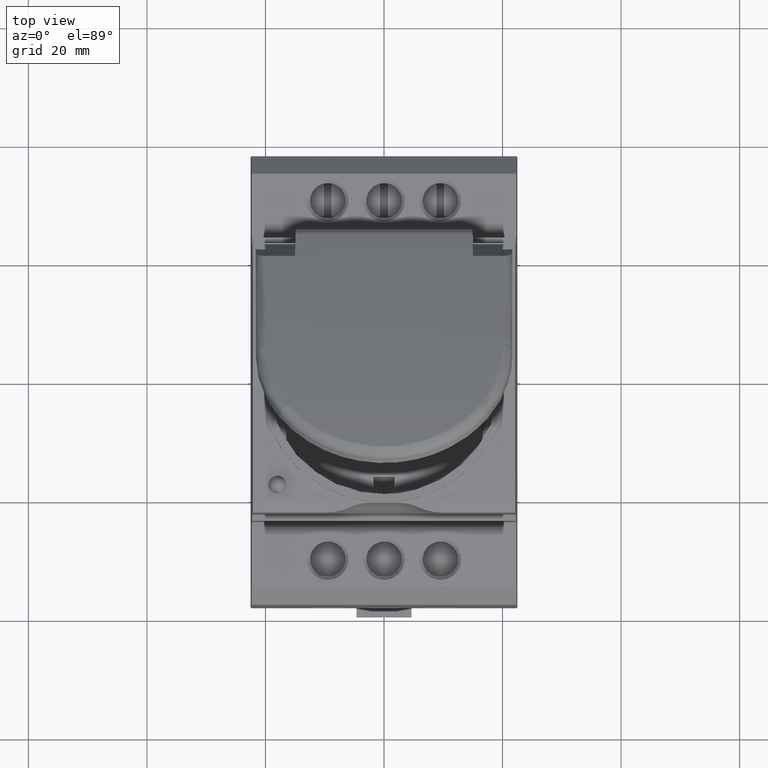
[diagram: clean part render]
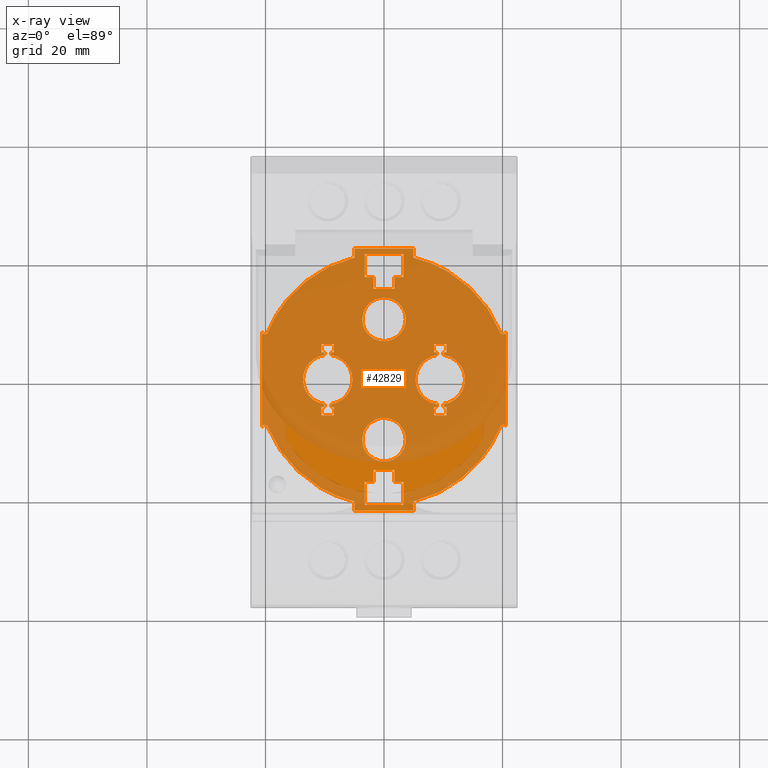
[diagram: x-ray — body ghosted, one internal face saturated and labeled with its STEP entity id]
A machine part, top view, then the same camera in x-ray: the body is ghosted and one INTERNAL B-rep face — a face not visible from any outside direction — is saturated and labeled: STEP entity #42829.
In plain terms, the highlighted planar face has unit normal (0, 0, 1).
Its self-contained STEP definition (entity closure, byte-faithful):
#26 = VERTEX_POINT ( 'NONE', #30658 ) ;
#77 = ORIENTED_EDGE ( 'NONE', *, *, #50155, .F. ) ;
#79 = ORIENTED_EDGE ( 'NONE', *, *, #50142, .F. ) ;
#80 = ORIENTED_EDGE ( 'NONE', *, *, #49865, .F. ) ;
#81 = ORIENTED_EDGE ( 'NONE', *, *, #50097, .F. ) ;
#96 = ORIENTED_EDGE ( 'NONE', *, *, #50195, .F. ) ;
#98 = ORIENTED_EDGE ( 'NONE', *, *, #50116, .F. ) ;
#100 = ORIENTED_EDGE ( 'NONE', *, *, #50147, .F. ) ;
#101 = ORIENTED_EDGE ( 'NONE', *, *, #50165, .F. ) ;
#107 = ORIENTED_EDGE ( 'NONE', *, *, #15575, .F. ) ;
#109 = ORIENTED_EDGE ( 'NONE', *, *, #15663, .F. ) ;
#110 = ORIENTED_EDGE ( 'NONE', *, *, #50167, .F. ) ;
#111 = ORIENTED_EDGE ( 'NONE', *, *, #50238, .F. ) ;
#113 = ORIENTED_EDGE ( 'NONE', *, *, #15636, .F. ) ;
#115 = ORIENTED_EDGE ( 'NONE', *, *, #49519, .F. ) ;
#120 = ORIENTED_EDGE ( 'NONE', *, *, #15599, .F. ) ;
#122 = ORIENTED_EDGE ( 'NONE', *, *, #49783, .F. ) ;
#125 = ORIENTED_EDGE ( 'NONE', *, *, #50239, .F. ) ;
#133 = ORIENTED_EDGE ( 'NONE', *, *, #50163, .F. ) ;
#140 = ORIENTED_EDGE ( 'NONE', *, *, #15732, .F. ) ;
#155 = ORIENTED_EDGE ( 'NONE', *, *, #49535, .F. ) ;
#175 = ORIENTED_EDGE ( 'NONE', *, *, #50090, .F. ) ;
#177 = ORIENTED_EDGE ( 'NONE', *, *, #50121, .F. ) ;
#179 = ORIENTED_EDGE ( 'NONE', *, *, #50075, .F. ) ;
#183 = ORIENTED_EDGE ( 'NONE', *, *, #50218, .F. ) ;
#192 = ORIENTED_EDGE ( 'NONE', *, *, #15632, .F. ) ;
#199 = ORIENTED_EDGE ( 'NONE', *, *, #50177, .F. ) ;
#273 = ORIENTED_EDGE ( 'NONE', *, *, #16151, .F. ) ;
#277 = ORIENTED_EDGE ( 'NONE', *, *, #16024, .F. ) ;
#293 = ORIENTED_EDGE ( 'NONE', *, *, #15581, .F. ) ;
#298 = ORIENTED_EDGE ( 'NONE', *, *, #16047, .F. ) ;
#299 = ORIENTED_EDGE ( 'NONE', *, *, #16016, .F. ) ;
#307 = ORIENTED_EDGE ( 'NONE', *, *, #16268, .F. ) ;
#308 = ORIENTED_EDGE ( 'NONE', *, *, #16249, .F. ) ;
#329 = ORIENTED_EDGE ( 'NONE', *, *, #17924, .F. ) ;
#336 = ORIENTED_EDGE ( 'NONE', *, *, #15621, .F. ) ;
#337 = ORIENTED_EDGE ( 'NONE', *, *, #50227, .T. ) ;
#338 = ORIENTED_EDGE ( 'NONE', *, *, #49755, .F. ) ;
#340 = ORIENTED_EDGE ( 'NONE', *, *, #49499, .F. ) ;
#346 = ORIENTED_EDGE ( 'NONE', *, *, #15604, .F. ) ;
#348 = ORIENTED_EDGE ( 'NONE', *, *, #49509, .F. ) ;
#351 = ORIENTED_EDGE ( 'NONE', *, *, #15584, .F. ) ;
#352 = ORIENTED_EDGE ( 'NONE', *, *, #49538, .F. ) ;
#354 = ORIENTED_EDGE ( 'NONE', *, *, #16240, .F. ) ;
#355 = ORIENTED_EDGE ( 'NONE', *, *, #15659, .F. ) ;
#356 = ORIENTED_EDGE ( 'NONE', *, *, #50233, .T. ) ;
#358 = ORIENTED_EDGE ( 'NONE', *, *, #15606, .F. ) ;
#360 = ORIENTED_EDGE ( 'NONE', *, *, #15655, .F. ) ;
#361 = ORIENTED_EDGE ( 'NONE', *, *, #15631, .F. ) ;
#362 = ORIENTED_EDGE ( 'NONE', *, *, #50107, .F. ) ;
#363 = ORIENTED_EDGE ( 'NONE', *, *, #50236, .F. ) ;
#364 = ORIENTED_EDGE ( 'NONE', *, *, #50138, .F. ) ;
#365 = ORIENTED_EDGE ( 'NONE', *, *, #15597, .F. ) ;
#367 = ORIENTED_EDGE ( 'NONE', *, *, #15706, .F. ) ;
#368 = ORIENTED_EDGE ( 'NONE', *, *, #16088, .F. ) ;
#370 = ORIENTED_EDGE ( 'NONE', *, *, #49517, .F. ) ;
#372 = ORIENTED_EDGE ( 'NONE', *, *, #15582, .F. ) ;
#374 = ORIENTED_EDGE ( 'NONE', *, *, #15583, .F. ) ;
#376 = ORIENTED_EDGE ( 'NONE', *, *, #49555, .F. ) ;
#377 = ORIENTED_EDGE ( 'NONE', *, *, #15694, .F. ) ;
#382 = ORIENTED_EDGE ( 'NONE', *, *, #49505, .F. ) ;
#383 = ORIENTED_EDGE ( 'NONE', *, *, #49617, .T. ) ;
#385 = ORIENTED_EDGE ( 'NONE', *, *, #16169, .F. ) ;
#387 = ORIENTED_EDGE ( 'NONE', *, *, #16242, .F. ) ;
#388 = ORIENTED_EDGE ( 'NONE', *, *, #16205, .F. ) ;
#389 = ORIENTED_EDGE ( 'NONE', *, *, #15624, .F. ) ;
#396 = ORIENTED_EDGE ( 'NONE', *, *, #49796, .F. ) ;
#398 = ORIENTED_EDGE ( 'NONE', *, *, #49764, .F. ) ;
#399 = ORIENTED_EDGE ( 'NONE', *, *, #16220, .F. ) ;
#407 = ORIENTED_EDGE ( 'NONE', *, *, #15585, .F. ) ;
#410 = ORIENTED_EDGE ( 'NONE', *, *, #15652, .F. ) ;
#428 = ORIENTED_EDGE ( 'NONE', *, *, #15589, .F. ) ;
#438 = ORIENTED_EDGE ( 'NONE', *, *, #49554, .F. ) ;
#448 = ORIENTED_EDGE ( 'NONE', *, *, #16244, .F. ) ;
#449 = ORIENTED_EDGE ( 'NONE', *, *, #49616, .T. ) ;
#459 = ORIENTED_EDGE ( 'NONE', *, *, #49863, .F. ) ;
#1050 = EDGE_LOOP ( 'NONE', ( #383, #360, #449, #407, #352, #346, #376, #358, #356, #336, #337, #351, #370, #365, #438, #372 ) ) ;
#1062 = EDGE_LOOP ( 'NONE', ( #387, #354, #399, #388, #368, #367, #385, #448 ) ) ;
#1071 = EDGE_LOOP ( 'NONE', ( #428, #459, #396, #410 ) ) ;
#1088 = EDGE_LOOP ( 'NONE', ( #100, #175, #183, #140, #110, #81, #133, #80, #113, #199, #179, #79, #192, #111, #101, #98, #109 ) ) ;
#1105 = EDGE_LOOP ( 'NONE', ( #273, #307, #299, #277, #329, #308, #293, #298 ) ) ;
#1126 = VECTOR ( 'NONE', #28197, 1000.000000000000000 ) ;
#1128 = VECTOR ( 'NONE', #28220, 1000.000000000000000 ) ;
#1134 = EDGE_LOOP ( 'NONE', ( #338, #361, #355, #398 ) ) ;
#1137 = EDGE_LOOP ( 'NONE', ( #382, #364, #340, #377, #348, #362, #363, #389, #374, #155, #177, #125, #120, #115, #77, #96, #122, #107 ) ) ;
#1138 = VECTOR ( 'NONE', #28302, 1000.000000000000000 ) ;
#1145 = VECTOR ( 'NONE', #25365, 1000.000000000000000 ) ;
#1194 = VECTOR ( 'NONE', #27976, 1000.000000000000000 ) ;
#1202 = VECTOR ( 'NONE', #25475, 1000.000000000000000 ) ;
#1259 = VECTOR ( 'NONE', #24784, 1000.000000000000000 ) ;
#1270 = VECTOR ( 'NONE', #24683, 1000.000000000000000 ) ;
#1276 = VECTOR ( 'NONE', #24524, 1000.000000000000000 ) ;
#1317 = VECTOR ( 'NONE', #24754, 1000.000000000000000 ) ;
#1630 = VECTOR ( 'NONE', #40272, 1000.000000000000000 ) ;
#1646 = VECTOR ( 'NONE', #40388, 1000.000000000000000 ) ;
#1711 = VECTOR ( 'NONE', #40327, 1000.000000000000000 ) ;
#1724 = VECTOR ( 'NONE', #9728, 1000.000000000000000 ) ;
#1733 = VECTOR ( 'NONE', #39729, 1000.000000000000000 ) ;
#1772 = VECTOR ( 'NONE', #8751, 1000.000000000000000 ) ;
#1808 = VECTOR ( 'NONE', #39378, 1000.000000000000000 ) ;
#1838 = VECTOR ( 'NONE', #8956, 1000.000000000000000 ) ;
#1855 = VECTOR ( 'NONE', #8977, 1000.000000000000000 ) ;
#1861 = VECTOR ( 'NONE', #8912, 1000.000000000000000 ) ;
#1864 = VECTOR ( 'NONE', #8905, 1000.000000000000000 ) ;
#1868 = VECTOR ( 'NONE', #8873, 1000.000000000000000 ) ;
#1870 = VECTOR ( 'NONE', #8903, 1000.000000000000000 ) ;
#1991 = LINE ( 'NONE', #2029, #29532 ) ;
#1995 = DIRECTION ( 'NONE',  ( 1.724398567562022200E-014, 1.000000000000000000, -3.009948895892056600E-016 ) ) ;
#2006 = DIRECTION ( 'NONE',  ( 0.0000000000000000000, 1.000000000000000000, 0.0000000000000000000 ) ) ;
#2025 = LINE ( 'NONE', #2034, #29462 ) ;
#2029 = CARTESIAN_POINT ( 'NONE',  ( 4.999999999999600300, -22.16477094198864600, -1.700000000000000600 ) ) ;
#2034 = CARTESIAN_POINT ( 'NONE',  ( -10.05672464063993300, -3.658030960244145200, -1.699999999999997500 ) ) ;
#3133 = DIRECTION ( 'NONE',  ( -0.0000000000000000000, -1.000000000000000000, -0.0000000000000000000 ) ) ;
#3140 = LINE ( 'NONE', #3163, #29512 ) ;
#3163 = CARTESIAN_POINT ( 'NONE',  ( -8.943275359360072200, 3.658030960244140300, -1.699999999999997500 ) ) ;
#3169 = DIRECTION ( 'NONE',  ( -6.671505279165231600E-015, -1.000000000000000000, 5.822134453662450100E-017 ) ) ;
#3170 = LINE ( 'NONE', #3174, #29476 ) ;
#3174 = CARTESIAN_POINT ( 'NONE',  ( -8.443275359360068700, 5.962906424912289600, -1.699999999999998400 ) ) ;
#3187 = CARTESIAN_POINT ( 'NONE',  ( -10.55672464063993300, 5.962906424912289600, -1.699999999999997500 ) ) ;
#3190 = CARTESIAN_POINT ( 'NONE',  ( -8.443275359360068700, -5.962906424912289600, -1.699999999999997500 ) ) ;
#3200 = LINE ( 'NONE', #3202, #29519 ) ;
#3202 = CARTESIAN_POINT ( 'NONE',  ( -5.000000000000370400, 22.16477094198846100, -1.700000000000000000 ) ) ;
#3213 = LINE ( 'NONE', #3187, #29482 ) ;
#3214 = DIRECTION ( 'NONE',  ( 6.671505279165361000E-015, 1.000000000000000000, 5.822134453662557400E-017 ) ) ;
#3218 = DIRECTION ( 'NONE',  ( -0.0000000000000000000, -1.000000000000000000, -0.0000000000000000000 ) ) ;
#3223 = DIRECTION ( 'NONE',  ( 1.724398567562022200E-014, -1.000000000000000000, 3.009948895892056600E-016 ) ) ;
#3231 = LINE ( 'NONE', #3190, #29455 ) ;
#7068 = VERTEX_POINT ( 'NONE', #30837 ) ;
#7084 = VERTEX_POINT ( 'NONE', #30824 ) ;
#7099 = VERTEX_POINT ( 'NONE', #30835 ) ;
#7137 = VERTEX_POINT ( 'NONE', #30938 ) ;
#7144 = VERTEX_POINT ( 'NONE', #30909 ) ;
#7163 = VERTEX_POINT ( 'NONE', #30948 ) ;
#7230 = VERTEX_POINT ( 'NONE', #30889 ) ;
#7248 = VERTEX_POINT ( 'NONE', #30944 ) ;
#7280 = VERTEX_POINT ( 'NONE', #30920 ) ;
#7295 = VERTEX_POINT ( 'NONE', #30908 ) ;
#7327 = VERTEX_POINT ( 'NONE', #30987 ) ;
#7370 = VERTEX_POINT ( 'NONE', #31010 ) ;
#8629 = B_SPLINE_CURVE_WITH_KNOTS ( 'NONE', 3,
 ( #55105, #55075, #55065, #55088, #55070, #55091, #55071, #55074, #55077, #55069 ),
 .UNSPECIFIED., .F., .F.,
 ( 4, 2, 2, 2, 4 ),
 ( 0.0000000000000000000, 0.2500000000000000000, 0.5000000000000000000, 0.7500000000000000000, 1.000000000000000000 ),
 .UNSPECIFIED. ) ;
#8630 = B_SPLINE_CURVE_WITH_KNOTS ( 'NONE', 3,
 ( #55066, #55102, #55078, #55113, #55100, #55101, #55064, #55081, #55067, #55104 ),
 .UNSPECIFIED., .F., .F.,
 ( 4, 2, 2, 2, 4 ),
 ( 0.0000000000000000000, 0.2500000000000000000, 0.5000000000000000000, 0.7500000000000000000, 1.000000000000000000 ),
 .UNSPECIFIED. ) ;
#8645 = B_SPLINE_CURVE_WITH_KNOTS ( 'NONE', 3,
 ( #53987, #53996, #53974, #53998, #54013, #53992, #53985, #53959, #54000, #54004 ),
 .UNSPECIFIED., .F., .F.,
 ( 4, 2, 2, 2, 4 ),
 ( 0.0000000000000000000, 0.2500000000000000000, 0.5000000000000000000, 0.7500000000000000000, 1.000000000000000000 ),
 .UNSPECIFIED. ) ;
#8647 = B_SPLINE_CURVE_WITH_KNOTS ( 'NONE', 3,
 ( #53855, #53945, #53951, #53950, #53946, #53942, #53923, #53919, #53922, #53911 ),
 .UNSPECIFIED., .F., .F.,
 ( 4, 2, 2, 2, 4 ),
 ( 0.0000000000000000000, 0.2500000000000001100, 0.5000000000000001100, 0.7500000000000001100, 1.000000000000000000 ),
 .UNSPECIFIED. ) ;
#8655 = B_SPLINE_CURVE_WITH_KNOTS ( 'NONE', 3,
 ( #54301, #54266, #54259, #54268, #54261, #54306, #54308, #54282, #54288, #54270 ),
 .UNSPECIFIED., .F., .F.,
 ( 4, 2, 2, 2, 4 ),
 ( 0.0000000000000000000, 0.2499999999999998900, 0.4999999999999997800, 0.7499999999999996700, 1.000000000000000000 ),
 .UNSPECIFIED. ) ;
#8664 = B_SPLINE_CURVE_WITH_KNOTS ( 'NONE', 3,
 ( #54609, #54615, #54602, #54604, #54610, #54612, #54616, #54617, #54618, #54620 ),
 .UNSPECIFIED., .F., .F.,
 ( 4, 2, 2, 2, 4 ),
 ( 0.0000000000000000000, 0.2500000000000002800, 0.5000000000000005600, 0.7500000000000002200, 1.000000000000000000 ),
 .UNSPECIFIED. ) ;
#8745 = LINE ( 'NONE', #8747, #1772 ) ;
#8747 = CARTESIAN_POINT ( 'NONE',  ( 97.86427190747768600, 17.30000000000001100, -1.700000000000000000 ) ) ;
#8751 = DIRECTION ( 'NONE',  ( -1.000000000000000000, -0.0000000000000000000, 0.0000000000000000000 ) ) ;
#8853 = CARTESIAN_POINT ( 'NONE',  ( -3.250000000000405000, 21.11477094198835000, -1.700000000000003500 ) ) ;
#8869 = LINE ( 'NONE', #8853, #1868 ) ;
#8873 = DIRECTION ( 'NONE',  ( -8.624619780480530000E-015, 1.000000000000000000, 0.0000000000000000000 ) ) ;
#8877 = LINE ( 'NONE', #8886, #1861 ) ;
#8879 = CARTESIAN_POINT ( 'NONE',  ( 3.250000000000405000, 21.11477094198835000, -1.700000000000000200 ) ) ;
#8886 = CARTESIAN_POINT ( 'NONE',  ( 19.99999999999964800, 21.14444229247747800, -1.700000000000000200 ) ) ;
#8891 = LINE ( 'NONE', #8879, #1870 ) ;
#8894 = LINE ( 'NONE', #8915, #1864 ) ;
#8903 = DIRECTION ( 'NONE',  ( -8.624619780480530000E-015, -1.000000000000000000, 0.0000000000000000000 ) ) ;
#8905 = DIRECTION ( 'NONE',  ( -1.000000000000000000, -0.0000000000000000000, 0.0000000000000000000 ) ) ;
#8912 = DIRECTION ( 'NONE',  ( 1.000000000000000000, 1.724792598959423400E-014, 1.505203697759834300E-016 ) ) ;
#8915 = CARTESIAN_POINT ( 'NONE',  ( 97.86427190747768600, 17.30000000000001100, -1.700000000000000000 ) ) ;
#8922 = LINE ( 'NONE', #8924, #1838 ) ;
#8924 = CARTESIAN_POINT ( 'NONE',  ( 1.749999999999835000, 67.22940901336600900, -1.700000000000000000 ) ) ;
#8939 = CARTESIAN_POINT ( 'NONE',  ( -3.249999999999685100, -21.11477094198845000, -1.700000000000000200 ) ) ;
#8956 = DIRECTION ( 'NONE',  ( 0.0000000000000000000, -1.000000000000000000, -0.0000000000000000000 ) ) ;
#8962 = LINE ( 'NONE', #8939, #1855 ) ;
#8977 = DIRECTION ( 'NONE',  ( -2.587385934144160000E-014, 1.000000000000000000, 0.0000000000000000000 ) ) ;
#9727 = LINE ( 'NONE', #9764, #1724 ) ;
#9728 = DIRECTION ( 'NONE',  ( 0.0000000000000000000, -1.000000000000000000, -0.0000000000000000000 ) ) ;
#9764 = CARTESIAN_POINT ( 'NONE',  ( 1.750000000000376100, 67.22940901336600900, -1.700000000000000000 ) ) ;
#9853 = B_SPLINE_CURVE_WITH_KNOTS ( 'NONE', 3,
 ( #51362, #51365, #51519, #51476, #51541, #51504, #51546, #51582, #51536, #51490, #51478, #51505, #51590, #51565 ),
 .UNSPECIFIED., .F., .F.,
 ( 4, 2, 2, 2, 2, 2, 4 ),
 ( 0.0000000000000000000, 0.1249999999999967500, 0.2499999999999935100, 0.4999999999999956700, 0.6249999999999967800, 0.7499999999999977800, 1.000000000000000000 ),
 .UNSPECIFIED. ) ;
#9859 = B_SPLINE_CURVE_WITH_KNOTS ( 'NONE', 3,
 ( #51372, #51548, #51523, #51533, #51544, #51572, #51567, #51580, #51482, #51556, #51509, #51558, #51535, #51474 ),
 .UNSPECIFIED., .F., .F.,
 ( 4, 2, 2, 2, 2, 2, 4 ),
 ( 0.0000000000000000000, 0.1250000000000003300, 0.2499999999999992200, 0.4999999999999970000, 0.6249999999999958900, 0.7499999999999947800, 1.000000000000000000 ),
 .UNSPECIFIED. ) ;
#10199 = CARTESIAN_POINT ( 'NONE',  ( -10.05672464063976400, 4.606181784272530800, -1.700000000017178200 ) ) ;
#10211 = CARTESIAN_POINT ( 'NONE',  ( 10.05672464063993300, 4.606181784272380700, -1.699999999999999100 ) ) ;
#10215 = CARTESIAN_POINT ( 'NONE',  ( -10.55672464063991500, -4.606181784272356700, -1.699999999999997500 ) ) ;
#10217 = CARTESIAN_POINT ( 'NONE',  ( 8.443275359360210800, 4.606181784272454400, -1.700000000011204800 ) ) ;
#10240 = CARTESIAN_POINT ( 'NONE',  ( -8.943275359360237400, -4.606181784272507700, -1.700000000017179800 ) ) ;
#10267 = CARTESIAN_POINT ( 'NONE',  ( -10.05672464063993300, -4.606181784272358500, -1.699999999999997700 ) ) ;
#10278 = CARTESIAN_POINT ( 'NONE',  ( 10.55672464063987800, -4.606181784272453500, -1.700000000011203900 ) ) ;
#10286 = CARTESIAN_POINT ( 'NONE',  ( 10.05672464063976400, -4.606181784272507700, -1.700000000017180000 ) ) ;
#10287 = CARTESIAN_POINT ( 'NONE',  ( -8.443275359360107800, -4.606181784272455300, -1.700000000011203000 ) ) ;
#10289 = CARTESIAN_POINT ( 'NONE',  ( 8.943275359360237400, 4.606181784272515700, -1.700000000017181500 ) ) ;
#10290 = CARTESIAN_POINT ( 'NONE',  ( 8.443275359360054500, -4.606181784272356700, -1.699999999999997500 ) ) ;
#10291 = CARTESIAN_POINT ( 'NONE',  ( 8.943275359360070500, -4.606181784272358500, -1.699999999999997700 ) ) ;
#10295 = CARTESIAN_POINT ( 'NONE',  ( 1.968847927323702200E-013, -13.82032638962220600, -1.700000000016807400 ) ) ;
#10311 = CARTESIAN_POINT ( 'NONE',  ( 3.670326389620257600, 10.15000000000002200, -1.700000000014006300 ) ) ;
#10335 = CARTESIAN_POINT ( 'NONE',  ( -8.443275359360113100, 4.606181784272356700, -1.699999999999997500 ) ) ;
#10348 = CARTESIAN_POINT ( 'NONE',  ( 10.05672464063972900, -4.132998895532638000, -1.700000000020841700 ) ) ;
#10349 = CARTESIAN_POINT ( 'NONE',  ( 1.648170640313772900E-011, 13.82032638962052400, -1.700000000016807400 ) ) ;
#10352 = CARTESIAN_POINT ( 'NONE',  ( -10.55672464063990600, 4.606181784272484600, -1.700000000011203900 ) ) ;
#10360 = CARTESIAN_POINT ( 'NONE',  ( 3.670326389622263100, -10.14999999999997700, -1.700000000014006300 ) ) ;
#10365 = CARTESIAN_POINT ( 'NONE',  ( -1.500599024629910700E-013, 6.479673610379604700, -1.700000000016807400 ) ) ;
#10377 = CARTESIAN_POINT ( 'NONE',  ( -5.329673610379703800, -1.656969066827672000E-013, -1.700000000039545000 ) ) ;
#10381 = CARTESIAN_POINT ( 'NONE',  ( -8.943275359360274700, -4.132998895532558100, -1.700000000020841700 ) ) ;
#10393 = CARTESIAN_POINT ( 'NONE',  ( 13.67032638962049500, -1.879013671752684600E-013, -1.700000000039545000 ) ) ;
#10397 = CARTESIAN_POINT ( 'NONE',  ( 8.716713538630542600E-012, -6.479673610377922400, -1.700000000016807400 ) ) ;
#10413 = CARTESIAN_POINT ( 'NONE',  ( -1.749999999999806600, -15.29999999999999400, -1.700000000000000400 ) ) ;
#10502 = CARTESIAN_POINT ( 'NONE',  ( 10.55672464063997200, 4.606181784272387800, -1.700000000000000200 ) ) ;
#10576 = CARTESIAN_POINT ( 'NONE',  ( 8.943275359360322700, -4.132998895531146700, -1.700000000016807400 ) ) ;
#10588 = CARTESIAN_POINT ( 'NONE',  ( 8.443275359360066900, -6.019631065552217400, -1.699999999999998200 ) ) ;
#10620 = CARTESIAN_POINT ( 'NONE',  ( -8.943275359360070500, 4.606181784272365600, -1.699999999999997300 ) ) ;
#10627 = CARTESIAN_POINT ( 'NONE',  ( 10.05672464063978200, 4.132998895532384000, -1.700000000016807800 ) ) ;
#10646 = CARTESIAN_POINT ( 'NONE',  ( -10.55672464063993100, -6.019631065552217400, -1.699999999999998800 ) ) ;
#10660 = CARTESIAN_POINT ( 'NONE',  ( 4.999999999999602100, -22.12026391625561300, -1.699999999999997100 ) ) ;
#10662 = CARTESIAN_POINT ( 'NONE',  ( -4.999999999999507900, -22.12026391625577300, -1.700000000003715400 ) ) ;
#10673 = CARTESIAN_POINT ( 'NONE',  ( 10.55672464063994000, 6.019631065552220900, -1.699999999999998400 ) ) ;
#10674 = CARTESIAN_POINT ( 'NONE',  ( 10.55672464063992600, -6.019631065552217400, -1.699999999999998200 ) ) ;
#10675 = CARTESIAN_POINT ( 'NONE',  ( -4.999999999999553200, -20.58674161299965300, -1.700000000014710600 ) ) ;
#10676 = CARTESIAN_POINT ( 'NONE',  ( 8.443275359360086400, 6.019631065552220900, -1.700000000000000000 ) ) ;
#10685 = CARTESIAN_POINT ( 'NONE',  ( 20.60183536789405400, 8.134112306646439800, -1.699999999999997100 ) ) ;
#10688 = CARTESIAN_POINT ( 'NONE',  ( -13.67032638962190000, -2.351654652829859600E-013, -1.700000000014006300 ) ) ;
#10706 = CARTESIAN_POINT ( 'NONE',  ( 8.943275359360377800, 4.132998895530743500, -1.700000000020841700 ) ) ;
#10725 = CARTESIAN_POINT ( 'NONE',  ( 5.000000000000268200, 20.58674161299947500, -1.700000000014710000 ) ) ;
#10734 = CARTESIAN_POINT ( 'NONE',  ( 19.63837978703083600, 7.946569680871934200, -1.700000000075676300 ) ) ;
#10737 = CARTESIAN_POINT ( 'NONE',  ( 20.60183536789454100, -8.134112308773710600, -1.700000000057825000 ) ) ;
#10744 = CARTESIAN_POINT ( 'NONE',  ( 4.999999999999627900, -20.58674161299979100, -1.699999999999907100 ) ) ;
#10766 = CARTESIAN_POINT ( 'NONE',  ( 19.63837978783755000, -7.946569678880289100, -1.700000000013280400 ) ) ;
#11855 = LINE ( 'NONE', #11875, #56589 ) ;
#11875 = CARTESIAN_POINT ( 'NONE',  ( 97.86427190747768600, -17.29999999999999700, -1.700000000000000000 ) ) ;
#11889 = DIRECTION ( 'NONE',  ( 1.000000000000000000, 0.0000000000000000000, -0.0000000000000000000 ) ) ;
#12656 = VECTOR ( 'NONE', #57799, 1000.000000000000000 ) ;
#12661 = VECTOR ( 'NONE', #58852, 1000.000000000000000 ) ;
#12674 = VECTOR ( 'NONE', #58100, 1000.000000000000000 ) ;
#12678 = VECTOR ( 'NONE', #57766, 1000.000000000000000 ) ;
#12681 = VECTOR ( 'NONE', #58853, 1000.000000000000000 ) ;
#12690 = VECTOR ( 'NONE', #58849, 1000.000000000000000 ) ;
#12704 = VECTOR ( 'NONE', #57817, 1000.000000000000000 ) ;
#12710 = VECTOR ( 'NONE', #58550, 1000.000000000000000 ) ;
#12713 = VECTOR ( 'NONE', #57786, 1000.000000000000000 ) ;
#13466 = VECTOR ( 'NONE', #57233, 1000.000000000000000 ) ;
#13467 = VECTOR ( 'NONE', #57274, 1000.000000000000000 ) ;
#13480 = VECTOR ( 'NONE', #57156, 1000.000000000000000 ) ;
#13500 = VECTOR ( 'NONE', #57514, 1000.000000000000000 ) ;
#13507 = VECTOR ( 'NONE', #57742, 1000.000000000000000 ) ;
#13509 = VECTOR ( 'NONE', #57481, 1000.000000000000000 ) ;
#13515 = VECTOR ( 'NONE', #57698, 1000.000000000000000 ) ;
#13518 = VECTOR ( 'NONE', #57645, 1000.000000000000000 ) ;
#13525 = VECTOR ( 'NONE', #57599, 1000.000000000000000 ) ;
#13529 = VECTOR ( 'NONE', #57743, 1000.000000000000000 ) ;
#15036 = B_SPLINE_CURVE_WITH_KNOTS ( 'NONE', 3,
 ( #28287, #28304, #28229, #28316, #28231, #28239, #28271, #28240, #28242, #28250 ),
 .UNSPECIFIED., .F., .F.,
 ( 4, 2, 2, 2, 4 ),
 ( 0.0000000000000000000, 0.2500000000000000000, 0.5000000000000000000, 0.7500000000000000000, 1.000000000000000000 ),
 .UNSPECIFIED. ) ;
#15041 = B_SPLINE_CURVE_WITH_KNOTS ( 'NONE', 3,
 ( #28094, #28099, #28047, #28028, #28105, #28036, #28009, #28011, #28013, #28037 ),
 .UNSPECIFIED., .F., .F.,
 ( 4, 2, 2, 2, 4 ),
 ( 0.0000000000000000000, 0.2500000000000001100, 0.5000000000000001100, 0.7500000000000001100, 1.000000000000000000 ),
 .UNSPECIFIED. ) ;
#15065 = B_SPLINE_CURVE_WITH_KNOTS ( 'NONE', 3,
 ( #27816, #27826, #27797, #27823, #27870, #27866, #27825, #27875, #27832, #27878 ),
 .UNSPECIFIED., .F., .F.,
 ( 4, 2, 2, 2, 4 ),
 ( 0.0000000000000000000, 0.2500000000000000000, 0.5000000000000000000, 0.7500000000000000000, 1.000000000000000000 ),
 .UNSPECIFIED. ) ;
#15116 = B_SPLINE_CURVE_WITH_KNOTS ( 'NONE', 3,
 ( #28026, #28098, #28022, #28087, #28107, #28092, #28016, #28056, #28018, #28109 ),
 .UNSPECIFIED., .F., .F.,
 ( 4, 2, 2, 2, 4 ),
 ( 0.0000000000000000000, 0.2500000000000001100, 0.5000000000000002200, 0.7500000000000001100, 1.000000000000000000 ),
 .UNSPECIFIED. ) ;
#15137 = B_SPLINE_CURVE_WITH_KNOTS ( 'NONE', 3,
 ( #27897, #27911, #27899, #27913, #28084, #28114, #28103, #28039, #28070, #28078 ),
 .UNSPECIFIED., .F., .F.,
 ( 4, 2, 2, 2, 4 ),
 ( 0.0000000000000000000, 0.2500000000000000000, 0.5000000000000000000, 0.7500000000000000000, 1.000000000000000000 ),
 .UNSPECIFIED. ) ;
#15146 = B_SPLINE_CURVE_WITH_KNOTS ( 'NONE', 3,
 ( #28112, #28006, #28090, #28075, #28116, #28080, #28049, #28082, #28086, #28030 ),
 .UNSPECIFIED., .F., .F.,
 ( 4, 2, 2, 2, 4 ),
 ( 0.0000000000000000000, 0.2499999999999997800, 0.4999999999999995600, 0.7499999999999997800, 1.000000000000000000 ),
 .UNSPECIFIED. ) ;
#15153 = B_SPLINE_CURVE_WITH_KNOTS ( 'NONE', 3,
 ( #27956, #27993, #27977, #27960, #27979, #28004, #27999, #28001, #28002, #27909 ),
 .UNSPECIFIED., .F., .F.,
 ( 4, 2, 2, 2, 4 ),
 ( 0.0000000000000000000, 0.2500000000000001100, 0.5000000000000002200, 0.7500000000000001100, 1.000000000000000000 ),
 .UNSPECIFIED. ) ;
#15164 = B_SPLINE_CURVE_WITH_KNOTS ( 'NONE', 3,
 ( #25329, #25333, #25419, #25418, #25446, #25408, #25448, #25390, #25412, #25386 ),
 .UNSPECIFIED., .F., .F.,
 ( 4, 2, 2, 2, 4 ),
 ( 0.0000000000000000000, 0.2500000000000000000, 0.5000000000000000000, 0.7500000000000000000, 1.000000000000000000 ),
 .UNSPECIFIED. ) ;
#15171 = B_SPLINE_CURVE_WITH_KNOTS ( 'NONE', 3,
 ( #25567, #25570, #25536, #25473, #25517, #25548, #25530, #25526, #25541, #25546 ),
 .UNSPECIFIED., .F., .F.,
 ( 4, 2, 2, 2, 4 ),
 ( 0.0000000000000000000, 0.2500000000000000600, 0.5000000000000001100, 0.7500000000000002200, 1.000000000000000000 ),
 .UNSPECIFIED. ) ;
#15183 = B_SPLINE_CURVE_WITH_KNOTS ( 'NONE', 3,
 ( #25561, #25565, #25505, #25501, #25467, #25481, #25524, #25528, #25539, #25543 ),
 .UNSPECIFIED., .F., .F.,
 ( 4, 2, 2, 2, 4 ),
 ( 0.0000000000000000000, 0.2500000000000001100, 0.5000000000000001100, 0.7500000000000001100, 1.000000000000000000 ),
 .UNSPECIFIED. ) ;
#15187 = B_SPLINE_CURVE_WITH_KNOTS ( 'NONE', 3,
 ( #24602, #24599, #24565, #24585, #24578, #24567, #24609, #24596, #24603, #24572, #24586, #24604, #24582, #24610, #24566, #24587, #24579, #24606 ),
 .UNSPECIFIED., .F., .F.,
 ( 4, 2, 2, 2, 2, 2, 2, 2, 4 ),
 ( 0.0000000000000000000, 0.1250000000000002500, 0.2500000000000002200, 0.3750000000000002200, 0.5000000000000002200, 0.6250000000000002200, 0.7500000000000002200, 0.8750000000000003300, 1.000000000000000000 ),
 .UNSPECIFIED. ) ;
#15188 = B_SPLINE_CURVE_WITH_KNOTS ( 'NONE', 3,
 ( #24519, #24513, #24550, #24537, #24546, #24514, #24526, #24551, #24534, #24552 ),
 .UNSPECIFIED., .F., .F.,
 ( 4, 2, 2, 2, 4 ),
 ( 0.0000000000000000000, 0.2500000000000000000, 0.5000000000000000000, 0.7500000000000000000, 1.000000000000000000 ),
 .UNSPECIFIED. ) ;
#15224 = B_SPLINE_CURVE_WITH_KNOTS ( 'NONE', 3,
 ( #25869, #25924, #25843, #25879, #25881, #25855, #25900, #25839, #25904, #25845 ),
 .UNSPECIFIED., .F., .F.,
 ( 4, 2, 2, 2, 4 ),
 ( 0.0000000000000000000, 0.2500000000000000000, 0.5000000000000000000, 0.7500000000000000000, 1.000000000000000000 ),
 .UNSPECIFIED. ) ;
#15575 = EDGE_CURVE ( 'NONE', #30490, #40834, #15065, .T. ) ;
#15581 = EDGE_CURVE ( 'NONE', #40890, #44697, #27805, .T. ) ;
#15582 = EDGE_CURVE ( 'NONE', #41515, #41598, #15153, .T. ) ;
#15583 = EDGE_CURVE ( 'NONE', #30508, #41174, #15137, .T. ) ;
#15584 = EDGE_CURVE ( 'NONE', #30558, #30519, #15146, .T. ) ;
#15585 = EDGE_CURVE ( 'NONE', #41517, #41578, #15116, .T. ) ;
#15589 = EDGE_CURVE ( 'NONE', #40735, #25487, #15041, .T. ) ;
#15597 = EDGE_CURVE ( 'NONE', #26311, #30532, #28172, .T. ) ;
#15599 = EDGE_CURVE ( 'NONE', #30577, #41260, #28182, .T. ) ;
#15604 = EDGE_CURVE ( 'NONE', #41496, #41479, #28283, .T. ) ;
#15606 = EDGE_CURVE ( 'NONE', #30678, #41485, #15036, .T. ) ;
#15621 = EDGE_CURVE ( 'NONE', #30488, #30618, #25372, .T. ) ;
#15624 = EDGE_CURVE ( 'NONE', #41174, #30598, #15164, .T. ) ;
#15631 = EDGE_CURVE ( 'NONE', #26, #40792, #15171, .T. ) ;
#15632 = EDGE_CURVE ( 'NONE', #41201, #41257, #25414, .T. ) ;
#15636 = EDGE_CURVE ( 'NONE', #41173, #40804, #15183, .T. ) ;
#15652 = EDGE_CURVE ( 'NONE', #25487, #40828, #15224, .T. ) ;
#15655 = EDGE_CURVE ( 'NONE', #41585, #41447, #24522, .T. ) ;
#15659 = EDGE_CURVE ( 'NONE', #40774, #26, #15188, .T. ) ;
#15663 = EDGE_CURVE ( 'NONE', #41164, #41168, #15187, .T. ) ;
#15694 = EDGE_CURVE ( 'NONE', #30592, #30727, #24679, .T. ) ;
#15706 = EDGE_CURVE ( 'NONE', #44691, #26251, #24730, .T. ) ;
#15732 = EDGE_CURVE ( 'NONE', #41219, #41160, #24815, .T. ) ;
#16016 = EDGE_CURVE ( 'NONE', #7068, #7084, #40282, .T. ) ;
#16024 = EDGE_CURVE ( 'NONE', #7248, #7068, #40330, .T. ) ;
#16047 = EDGE_CURVE ( 'NONE', #7137, #40890, #40408, .T. ) ;
#16088 = EDGE_CURVE ( 'NONE', #26251, #7144, #39360, .T. ) ;
#16151 = EDGE_CURVE ( 'NONE', #7163, #7137, #39728, .T. ) ;
#16169 = EDGE_CURVE ( 'NONE', #7280, #44691, #9727, .T. ) ;
#16205 = EDGE_CURVE ( 'NONE', #7144, #7099, #8745, .T. ) ;
#16220 = EDGE_CURVE ( 'NONE', #7099, #7370, #8869, .T. ) ;
#16240 = EDGE_CURVE ( 'NONE', #7370, #7327, #8877, .T. ) ;
#16242 = EDGE_CURVE ( 'NONE', #7327, #7230, #8891, .T. ) ;
#16244 = EDGE_CURVE ( 'NONE', #7230, #7280, #8894, .T. ) ;
#16249 = EDGE_CURVE ( 'NONE', #44697, #7295, #8922, .T. ) ;
#16268 = EDGE_CURVE ( 'NONE', #7084, #7163, #8962, .T. ) ;
#16634 = CARTESIAN_POINT ( 'NONE',  ( 1.750000000000371700, 15.30000000000000100, -1.700000000000001300 ) ) ;
#16659 = CARTESIAN_POINT ( 'NONE',  ( 1.749999999999834400, -15.29999999999998600, -1.699999999999992600 ) ) ;
#17924 = EDGE_CURVE ( 'NONE', #7295, #7248, #11855, .T. ) ;
#24508 = CARTESIAN_POINT ( 'NONE',  ( 20.60183536789441000, 67.22940901336600900, -1.700000000000000000 ) ) ;
#24513 = CARTESIAN_POINT ( 'NONE',  ( -0.4804446009128870400, 6.479673610380486600, -1.700000000028012200 ) ) ;
#24514 = CARTESIAN_POINT ( 'NONE',  ( -2.935038314557892700, 7.894412956021930100, -1.700000000028012400 ) ) ;
#24519 = CARTESIAN_POINT ( 'NONE',  ( -1.500599024629910700E-013, 6.479673610379604700, -1.700000000016807400 ) ) ;
#24522 = LINE ( 'NONE', #24508, #1276 ) ;
#24524 = DIRECTION ( 'NONE',  ( -0.0000000000000000000, 1.000000000000000000, 0.0000000000000000000 ) ) ;
#24526 = CARTESIAN_POINT ( 'NONE',  ( -3.207081240067103200, 8.301553966031381300, -1.700000000028012900 ) ) ;
#24534 = CARTESIAN_POINT ( 'NONE',  ( -3.670326389619670900, 9.669555399087220900, -1.700000000028012900 ) ) ;
#24537 = CARTESIAN_POINT ( 'NONE',  ( -1.848446033968731400, 6.942918759933033500, -1.700000000028012200 ) ) ;
#24546 = CARTESIAN_POINT ( 'NONE',  ( -2.255587043978189300, 7.214961685442237800, -1.700000000028012900 ) ) ;
#24550 = CARTESIAN_POINT ( 'NONE',  ( -0.9607001673910992000, 6.575202382055928200, -1.700000000028012700 ) ) ;
#24551 = CARTESIAN_POINT ( 'NONE',  ( -3.574797617944224000, 9.189299832609009400, -1.700000000028013100 ) ) ;
#24552 = CARTESIAN_POINT ( 'NONE',  ( -3.670326389620549400, 10.14999999999994000, -1.700000000014006300 ) ) ;
#24565 = CARTESIAN_POINT ( 'NONE',  ( 7.965728191310232900, -3.909858620370908700, -1.700000000028012700 ) ) ;
#24566 = CARTESIAN_POINT ( 'NONE',  ( 7.085992937340925800, 3.437085148153671700, -1.700000000028012200 ) ) ;
#24567 = CARTESIAN_POINT ( 'NONE',  ( 6.031776933473345500, -2.369053223344887500, -1.700000000028013100 ) ) ;
#24572 = CARTESIAN_POINT ( 'NONE',  ( 5.329673610381265200, 0.4993618109917682400, -1.700000000028012400 ) ) ;
#24578 = CARTESIAN_POINT ( 'NONE',  ( 6.689155356020498800, -3.120919223824986300, -1.700000000028012900 ) ) ;
#24579 = CARTESIAN_POINT ( 'NONE',  ( 8.448383204531261000, 4.066335762048468400, -1.700000000028012200 ) ) ;
#24582 = CARTESIAN_POINT ( 'NONE',  ( 6.031776933473358900, 2.369053223344578900, -1.700000000028012900 ) ) ;
#24585 = CARTESIAN_POINT ( 'NONE',  ( 7.085992937340901900, -3.437085148153986100, -1.700000000028012200 ) ) ;
#24586 = CARTESIAN_POINT ( 'NONE',  ( 5.420317334547102700, 0.9985858818501272000, -1.700000000028012700 ) ) ;
#24587 = CARTESIAN_POINT ( 'NONE',  ( 7.965728191310257800, 3.909858620370586700, -1.700000000028012400 ) ) ;
#24596 = CARTESIAN_POINT ( 'NONE',  ( 5.420317334547095600, -0.9985858818504318400, -1.700000000028012400 ) ) ;
#24599 = CARTESIAN_POINT ( 'NONE',  ( 8.448383204531232600, -4.066335762048789900, -1.700000000028012900 ) ) ;
#24602 = CARTESIAN_POINT ( 'NONE',  ( 8.943275359360322700, -4.132998895531146700, -1.700000000016807400 ) ) ;
#24603 = CARTESIAN_POINT ( 'NONE',  ( 5.329673610381261600, -0.4993618109920743300, -1.700000000028012700 ) ) ;
#24604 = CARTESIAN_POINT ( 'NONE',  ( 5.771417418470862000, 1.933560536146838400, -1.700000000028012400 ) ) ;
#24606 = CARTESIAN_POINT ( 'NONE',  ( 8.943275359360377800, 4.132998895530743500, -1.700000000020841700 ) ) ;
#24609 = CARTESIAN_POINT ( 'NONE',  ( 5.771417418470850400, -1.933560536147145300, -1.700000000028012900 ) ) ;
#24610 = CARTESIAN_POINT ( 'NONE',  ( 6.689155356020516600, 3.120919223824674100, -1.700000000028012900 ) ) ;
#24679 = LINE ( 'NONE', #24680, #1270 ) ;
#24680 = CARTESIAN_POINT ( 'NONE',  ( 97.86427190747768600, 6.019631065552220900, -1.700000000000000000 ) ) ;
#24683 = DIRECTION ( 'NONE',  ( 1.000000000000000000, 0.0000000000000000000, -0.0000000000000000000 ) ) ;
#24730 = LINE ( 'NONE', #24749, #1317 ) ;
#24749 = CARTESIAN_POINT ( 'NONE',  ( 97.86427190747768600, 15.30000000000000100, -1.700000000000000000 ) ) ;
#24754 = DIRECTION ( 'NONE',  ( -1.000000000000000000, -0.0000000000000000000, 0.0000000000000000000 ) ) ;
#24784 = DIRECTION ( 'NONE',  ( -1.000000000000000000, -0.0000000000000000000, 0.0000000000000000000 ) ) ;
#24815 = LINE ( 'NONE', #24833, #1259 ) ;
#24833 = CARTESIAN_POINT ( 'NONE',  ( 97.86427190747768600, -6.019631065552213800, -1.700000000000000000 ) ) ;
#25329 = CARTESIAN_POINT ( 'NONE',  ( -13.67032638962190000, -2.351654652829859600E-013, -1.700000000014006300 ) ) ;
#25333 = CARTESIAN_POINT ( 'NONE',  ( -13.67032638962217000, 0.4993618109921125800, -1.700000000028012200 ) ) ;
#25361 = CARTESIAN_POINT ( 'NONE',  ( -20.60183536789467200, 67.22940901336600900, -1.700000000000000000 ) ) ;
#25365 = DIRECTION ( 'NONE',  ( 0.0000000000000000000, -1.000000000000000000, -0.0000000000000000000 ) ) ;
#25372 = LINE ( 'NONE', #25361, #1145 ) ;
#25386 = CARTESIAN_POINT ( 'NONE',  ( -10.05672464063979800, 4.132998895533314800, -1.700000000020843900 ) ) ;
#25390 = CARTESIAN_POINT ( 'NONE',  ( -11.03427180869093700, 3.909858620373829900, -1.700000000028013100 ) ) ;
#25408 = CARTESIAN_POINT ( 'NONE',  ( -12.31084464398177900, 3.120919223827256500, -1.700000000028012700 ) ) ;
#25412 = CARTESIAN_POINT ( 'NONE',  ( -10.55161679546951900, 4.066335762051834600, -1.700000000028012400 ) ) ;
#25414 = LINE ( 'NONE', #25553, #1202 ) ;
#25418 = CARTESIAN_POINT ( 'NONE',  ( -13.22858258153221200, 1.933560536148407200, -1.700000000028012200 ) ) ;
#25419 = CARTESIAN_POINT ( 'NONE',  ( -13.57968266545626600, 0.9985858818508954700, -1.700000000028012700 ) ) ;
#25446 = CARTESIAN_POINT ( 'NONE',  ( -12.96822306652950000, 2.369053223346522200, -1.700000000028012400 ) ) ;
#25448 = CARTESIAN_POINT ( 'NONE',  ( -11.91400706266102500, 3.437085148156522800, -1.700000000028012400 ) ) ;
#25467 = CARTESIAN_POINT ( 'NONE',  ( 12.31084464398081300, 3.120919223826165400, -1.700000000028012200 ) ) ;
#25473 = CARTESIAN_POINT ( 'NONE',  ( -3.207081240067151100, 11.99844603396853800, -1.700000000028012700 ) ) ;
#25475 = DIRECTION ( 'NONE',  ( 1.000000000000000000, 0.0000000000000000000, -0.0000000000000000000 ) ) ;
#25481 = CARTESIAN_POINT ( 'NONE',  ( 12.96822306652828900, 2.369053223345708200, -1.700000000028011800 ) ) ;
#25487 = VERTEX_POINT ( 'NONE', #31710 ) ;
#25501 = CARTESIAN_POINT ( 'NONE',  ( 11.91400706266021300, 3.437085148155317500, -1.700000000028012200 ) ) ;
#25505 = CARTESIAN_POINT ( 'NONE',  ( 11.03427180869045400, 3.909858620372457700, -1.700000000028012700 ) ) ;
#25517 = CARTESIAN_POINT ( 'NONE',  ( -2.935038314557946400, 12.40558704397799900, -1.700000000028012700 ) ) ;
#25524 = CARTESIAN_POINT ( 'NONE',  ( 13.22858258153091500, 1.933560536147759000, -1.700000000028012200 ) ) ;
#25526 = CARTESIAN_POINT ( 'NONE',  ( -0.9607001673911564900, 13.72479761794405900, -1.700000000028013100 ) ) ;
#25528 = CARTESIAN_POINT ( 'NONE',  ( 13.57968266545484000, 0.9985858818505968200, -1.700000000028011800 ) ) ;
#25530 = CARTESIAN_POINT ( 'NONE',  ( -1.848446033968794700, 13.35708124006693300, -1.700000000028013100 ) ) ;
#25536 = CARTESIAN_POINT ( 'NONE',  ( -3.574797617944252900, 11.11070016739088500, -1.700000000028012700 ) ) ;
#25539 = CARTESIAN_POINT ( 'NONE',  ( 13.67032638962071900, 0.4993618109919971100, -1.700000000028011800 ) ) ;
#25541 = CARTESIAN_POINT ( 'NONE',  ( -0.4804446009129397800, 13.82032638961950400, -1.700000000028012900 ) ) ;
#25543 = CARTESIAN_POINT ( 'NONE',  ( 13.67032638962049500, -1.879013671752684600E-013, -1.700000000039545000 ) ) ;
#25546 = CARTESIAN_POINT ( 'NONE',  ( 1.648170640313772900E-011, 13.82032638962052400, -1.700000000016807400 ) ) ;
#25548 = CARTESIAN_POINT ( 'NONE',  ( -2.255587043978250200, 13.08503831455772500, -1.700000000028013300 ) ) ;
#25553 = CARTESIAN_POINT ( 'NONE',  ( 97.86427190747768600, 6.019631065552220900, -1.700000000000000000 ) ) ;
#25561 = CARTESIAN_POINT ( 'NONE',  ( 10.05672464063978200, 4.132998895532384000, -1.700000000016807800 ) ) ;
#25565 = CARTESIAN_POINT ( 'NONE',  ( 10.55161679546922000, 4.066335762050410800, -1.700000000028012200 ) ) ;
#25567 = CARTESIAN_POINT ( 'NONE',  ( -3.670326389620549400, 10.14999999999994000, -1.700000000014006300 ) ) ;
#25570 = CARTESIAN_POINT ( 'NONE',  ( -3.670326389619686500, 10.63044460091267000, -1.700000000028012900 ) ) ;
#25839 = CARTESIAN_POINT ( 'NONE',  ( -0.9607001673914416000, -6.575202382053574500, -1.700000000028012400 ) ) ;
#25843 = CARTESIAN_POINT ( 'NONE',  ( -3.574797617946272200, -9.189299832608478300, -1.700000000028012700 ) ) ;
#25845 = CARTESIAN_POINT ( 'NONE',  ( 8.716713538630542600E-012, -6.479673610377922400, -1.700000000016807400 ) ) ;
#25855 = CARTESIAN_POINT ( 'NONE',  ( -2.255587043979395000, -7.214961685440339800, -1.700000000028012400 ) ) ;
#25869 = CARTESIAN_POINT ( 'NONE',  ( -3.670326389621950900, -10.15000000000006300, -1.700000000014006300 ) ) ;
#25879 = CARTESIAN_POINT ( 'NONE',  ( -3.207081240068924800, -8.301553966030239100, -1.700000000028011800 ) ) ;
#25881 = CARTESIAN_POINT ( 'NONE',  ( -2.935038314559542000, -7.894412956020507200, -1.700000000028012200 ) ) ;
#25900 = CARTESIAN_POINT ( 'NONE',  ( -1.848446033969668200, -6.942918759930944500, -1.700000000028012200 ) ) ;
#25904 = CARTESIAN_POINT ( 'NONE',  ( -0.4804446009129063600, -6.479673610378063700, -1.700000000028012200 ) ) ;
#25924 = CARTESIAN_POINT ( 'NONE',  ( -3.670326389621767900, -9.669555399087018400, -1.700000000028012200 ) ) ;
#26251 = VERTEX_POINT ( 'NONE', #31639 ) ;
#26311 = VERTEX_POINT ( 'NONE', #31686 ) ;
#27797 = CARTESIAN_POINT ( 'NONE',  ( -7.965728191309591600, 3.909858620372335600, -1.700000000028012700 ) ) ;
#27805 = LINE ( 'NONE', #27941, #1194 ) ;
#27816 = CARTESIAN_POINT ( 'NONE',  ( -8.943275359360226800, 4.132998895532305800, -1.700000000016807400 ) ) ;
#27823 = CARTESIAN_POINT ( 'NONE',  ( -7.085992937339860000, 3.437085148155207800, -1.700000000028012200 ) ) ;
#27825 = CARTESIAN_POINT ( 'NONE',  ( -5.771417418469200200, 1.933560536147697500, -1.700000000028012400 ) ) ;
#27826 = CARTESIAN_POINT ( 'NONE',  ( -8.448383204530809800, 4.066335762050282000, -1.700000000028012200 ) ) ;
#27832 = CARTESIAN_POINT ( 'NONE',  ( -5.329673610379407100, 0.4993618109919814000, -1.700000000028012400 ) ) ;
#27866 = CARTESIAN_POINT ( 'NONE',  ( -6.031776933471813400, 2.369053223345634100, -1.700000000028012700 ) ) ;
#27870 = CARTESIAN_POINT ( 'NONE',  ( -6.689155356019271400, 3.120919223826066300, -1.700000000028012400 ) ) ;
#27875 = CARTESIAN_POINT ( 'NONE',  ( -5.420317334545285500, 0.9985858818505651800, -1.700000000028013100 ) ) ;
#27878 = CARTESIAN_POINT ( 'NONE',  ( -5.329673610379703800, -1.656969066827672000E-013, -1.700000000039545000 ) ) ;
#27897 = CARTESIAN_POINT ( 'NONE',  ( -10.05672464063985300, -4.132998895533716200, -1.700000000016810300 ) ) ;
#27899 = CARTESIAN_POINT ( 'NONE',  ( -11.03427180869093900, -3.909858620374156300, -1.700000000028012700 ) ) ;
#27909 = CARTESIAN_POINT ( 'NONE',  ( 5.000000000000268200, 20.58674161299947500, -1.700000000014710000 ) ) ;
#27911 = CARTESIAN_POINT ( 'NONE',  ( -10.55161679546953300, -4.066335762052157900, -1.700000000028012200 ) ) ;
#27913 = CARTESIAN_POINT ( 'NONE',  ( -11.91400706266100300, -3.437085148156864700, -1.700000000028012200 ) ) ;
#27941 = CARTESIAN_POINT ( 'NONE',  ( 97.86427190747768600, -15.29999999999999400, -1.700000000000000000 ) ) ;
#27956 = CARTESIAN_POINT ( 'NONE',  ( 19.63837978703083600, 7.946569680871934200, -1.700000000075676300 ) ) ;
#27960 = CARTESIAN_POINT ( 'NONE',  ( 16.24904242123944400, 13.69612281798944800, -1.700000000050804000 ) ) ;
#27976 = DIRECTION ( 'NONE',  ( 1.000000000000000000, 0.0000000000000000000, -0.0000000000000000000 ) ) ;
#27977 = CARTESIAN_POINT ( 'NONE',  ( 18.19810149556212400, 10.97471010140629700, -1.700000000050804000 ) ) ;
#27979 = CARTESIAN_POINT ( 'NONE',  ( 15.11256447685312000, 14.94073474718184800, -1.700000000050804200 ) ) ;
#27993 = CARTESIAN_POINT ( 'NONE',  ( 19.01058039943230300, 9.498052049205155000, -1.700000000050804000 ) ) ;
#27999 = CARTESIAN_POINT ( 'NONE',  ( 11.18208108040393100, 18.07142004835154500, -1.700000000050804000 ) ) ;
#28001 = CARTESIAN_POINT ( 'NONE',  ( 8.205697036855196900, 19.60310424376801900, -1.700000000050804200 ) ) ;
#28002 = CARTESIAN_POINT ( 'NONE',  ( 6.626405386581550000, 20.19172878941703400, -1.700000000050803800 ) ) ;
#28004 = CARTESIAN_POINT ( 'NONE',  ( 12.57901736551571400, 17.12844073378379800, -1.700000000050804200 ) ) ;
#28006 = CARTESIAN_POINT ( 'NONE',  ( -6.626405386707917300, 20.19172878938680400, -1.699999999999924000 ) ) ;
#28009 = CARTESIAN_POINT ( 'NONE',  ( -3.207081240068876400, -11.99844603396984200, -1.700000000028012200 ) ) ;
#28011 = CARTESIAN_POINT ( 'NONE',  ( -3.574797617946241100, -11.11070016739162700, -1.700000000028011800 ) ) ;
#28013 = CARTESIAN_POINT ( 'NONE',  ( -3.670326389621752000, -10.63044460091309600, -1.700000000028012000 ) ) ;
#28016 = CARTESIAN_POINT ( 'NONE',  ( 16.24904242191952300, -13.69612281719915000, -1.699999999999844300 ) ) ;
#28018 = CARTESIAN_POINT ( 'NONE',  ( 19.01058040008255600, -9.498052047927538800, -1.699999999999844700 ) ) ;
#28022 = CARTESIAN_POINT ( 'NONE',  ( 8.205697037099795900, -19.60310424367720800, -1.699999999999844300 ) ) ;
#28026 = CARTESIAN_POINT ( 'NONE',  ( 4.999999999999627900, -20.58674161299979100, -1.699999999999907100 ) ) ;
#28028 = CARTESIAN_POINT ( 'NONE',  ( -1.848446033969608500, -13.35708124006908700, -1.700000000028012400 ) ) ;
#28030 = CARTESIAN_POINT ( 'NONE',  ( -19.63837978783782700, 7.946569678879611400, -1.700000000013356800 ) ) ;
#28036 = CARTESIAN_POINT ( 'NONE',  ( -2.935038314559488300, -12.40558704397955800, -1.700000000028011800 ) ) ;
#28037 = CARTESIAN_POINT ( 'NONE',  ( -3.670326389621950900, -10.15000000000006300, -1.700000000014006300 ) ) ;
#28039 = CARTESIAN_POINT ( 'NONE',  ( -13.57968266545623900, -0.9985858818513386700, -1.700000000028013100 ) ) ;
#28047 = CARTESIAN_POINT ( 'NONE',  ( -0.9607001673913887500, -13.72479761794643900, -1.700000000028012700 ) ) ;
#28049 = CARTESIAN_POINT ( 'NONE',  ( -16.24904242191999900, 13.69612281719858500, -1.699999999999923100 ) ) ;
#28056 = CARTESIAN_POINT ( 'NONE',  ( 18.19810149624344600, -10.97471010029721200, -1.699999999999844700 ) ) ;
#28070 = CARTESIAN_POINT ( 'NONE',  ( -13.67032638962215800, -0.4993618109925674900, -1.700000000028012400 ) ) ;
#28075 = CARTESIAN_POINT ( 'NONE',  ( -11.18208108085212000, 18.07142004808677500, -1.699999999999923800 ) ) ;
#28078 = CARTESIAN_POINT ( 'NONE',  ( -13.67032638962190000, -2.351654652829859600E-013, -1.700000000014006300 ) ) ;
#28080 = CARTESIAN_POINT ( 'NONE',  ( -15.11256447750145800, 14.94073474654124000, -1.699999999999923100 ) ) ;
#28082 = CARTESIAN_POINT ( 'NONE',  ( -18.19810149624382200, 10.97471010029657600, -1.699999999999923100 ) ) ;
#28084 = CARTESIAN_POINT ( 'NONE',  ( -12.31084464398174400, -3.120919223827613600, -1.700000000028012400 ) ) ;
#28086 = CARTESIAN_POINT ( 'NONE',  ( -19.01058040008288000, 9.498052047926881500, -1.699999999999922500 ) ) ;
#28087 = CARTESIAN_POINT ( 'NONE',  ( 11.18208108085149300, -18.07142004808716600, -1.699999999999844300 ) ) ;
#28090 = CARTESIAN_POINT ( 'NONE',  ( -8.205697037100470900, 19.60310424367692400, -1.699999999999924000 ) ) ;
#28092 = CARTESIAN_POINT ( 'NONE',  ( 15.11256447750094300, -14.94073474654175200, -1.699999999999844700 ) ) ;
#28094 = CARTESIAN_POINT ( 'NONE',  ( 1.968847927323702200E-013, -13.82032638962220600, -1.700000000016807400 ) ) ;
#28098 = CARTESIAN_POINT ( 'NONE',  ( 6.626405386707222800, -20.19172878938703500, -1.699999999999844300 ) ) ;
#28099 = CARTESIAN_POINT ( 'NONE',  ( -0.4804446009128584500, -13.82032638962194000, -1.700000000028012200 ) ) ;
#28103 = CARTESIAN_POINT ( 'NONE',  ( -13.22858258153217300, -1.933560536148815100, -1.700000000028012400 ) ) ;
#28105 = CARTESIAN_POINT ( 'NONE',  ( -2.255587043979335100, -13.08503831455970200, -1.700000000028012200 ) ) ;
#28107 = CARTESIAN_POINT ( 'NONE',  ( 12.57901736604725300, -17.12844073340668400, -1.699999999999844500 ) ) ;
#28109 = CARTESIAN_POINT ( 'NONE',  ( 19.63837978783755000, -7.946569678880289100, -1.700000000013280400 ) ) ;
#28112 = CARTESIAN_POINT ( 'NONE',  ( -5.000000000000340200, 20.58674161299961400, -1.699999999999954400 ) ) ;
#28114 = CARTESIAN_POINT ( 'NONE',  ( -12.96822306652945600, -2.369053223346909500, -1.700000000028012700 ) ) ;
#28116 = CARTESIAN_POINT ( 'NONE',  ( -12.57901736604783600, 17.12844073340625400, -1.699999999999923400 ) ) ;
#28122 = CARTESIAN_POINT ( 'NONE',  ( 97.86427190747768600, 22.12026391625567000, -1.700000000000000000 ) ) ;
#28138 = CARTESIAN_POINT ( 'NONE',  ( 97.86427190747768600, -6.019631065552213800, -1.700000000000000000 ) ) ;
#28172 = LINE ( 'NONE', #28122, #1126 ) ;
#28182 = LINE ( 'NONE', #28138, #1128 ) ;
#28197 = DIRECTION ( 'NONE',  ( -1.000000000000000000, -0.0000000000000000000, 0.0000000000000000000 ) ) ;
#28220 = DIRECTION ( 'NONE',  ( -1.000000000000000000, -0.0000000000000000000, 0.0000000000000000000 ) ) ;
#28229 = CARTESIAN_POINT ( 'NONE',  ( -18.19810149556180400, -10.97471010140683300, -1.700000000050803100 ) ) ;
#28231 = CARTESIAN_POINT ( 'NONE',  ( -15.11256447685266300, -14.94073474718231200, -1.700000000050802900 ) ) ;
#28233 = CARTESIAN_POINT ( 'NONE',  ( 97.86427190747768600, -22.12026391625575200, -1.700000000000000000 ) ) ;
#28239 = CARTESIAN_POINT ( 'NONE',  ( -12.57901736551517400, -17.12844073378419200, -1.700000000050802700 ) ) ;
#28240 = CARTESIAN_POINT ( 'NONE',  ( -8.205697036854529000, -19.60310424376830300, -1.700000000050802700 ) ) ;
#28242 = CARTESIAN_POINT ( 'NONE',  ( -6.626405386580867000, -20.19172878941726200, -1.700000000050802400 ) ) ;
#28250 = CARTESIAN_POINT ( 'NONE',  ( -4.999999999999553200, -20.58674161299965300, -1.700000000014710600 ) ) ;
#28271 = CARTESIAN_POINT ( 'NONE',  ( -11.18208108040333700, -18.07142004835192100, -1.700000000050802900 ) ) ;
#28283 = LINE ( 'NONE', #28233, #1138 ) ;
#28287 = CARTESIAN_POINT ( 'NONE',  ( -19.63837978703063700, -7.946569680872436900, -1.700000000075675400 ) ) ;
#28302 = DIRECTION ( 'NONE',  ( 1.000000000000000000, 0.0000000000000000000, -0.0000000000000000000 ) ) ;
#28304 = CARTESIAN_POINT ( 'NONE',  ( -19.01058039943204000, -9.498052049205695000, -1.700000000050802700 ) ) ;
#28316 = CARTESIAN_POINT ( 'NONE',  ( -16.24904242123901800, -13.69612281798994000, -1.700000000050802700 ) ) ;
#29455 = VECTOR ( 'NONE', #3218, 1000.000000000000000 ) ;
#29462 = VECTOR ( 'NONE', #2006, 1000.000000000000000 ) ;
#29476 = VECTOR ( 'NONE', #3169, 1000.000000000000000 ) ;
#29482 = VECTOR ( 'NONE', #3214, 1000.000000000000000 ) ;
#29489 = VECTOR ( 'NONE', #50504, 1000.000000000000000 ) ;
#29503 = VECTOR ( 'NONE', #50491, 1000.000000000000000 ) ;
#29512 = VECTOR ( 'NONE', #3133, 1000.000000000000000 ) ;
#29519 = VECTOR ( 'NONE', #3223, 1000.000000000000000 ) ;
#29532 = VECTOR ( 'NONE', #1995, 1000.000000000000000 ) ;
#30488 = VERTEX_POINT ( 'NONE', #31725 ) ;
#30490 = VERTEX_POINT ( 'NONE', #31856 ) ;
#30508 = VERTEX_POINT ( 'NONE', #31749 ) ;
#30519 = VERTEX_POINT ( 'NONE', #31791 ) ;
#30532 = VERTEX_POINT ( 'NONE', #31857 ) ;
#30558 = VERTEX_POINT ( 'NONE', #31822 ) ;
#30577 = VERTEX_POINT ( 'NONE', #31771 ) ;
#30592 = VERTEX_POINT ( 'NONE', #31862 ) ;
#30598 = VERTEX_POINT ( 'NONE', #31810 ) ;
#30618 = VERTEX_POINT ( 'NONE', #31755 ) ;
#30658 = CARTESIAN_POINT ( 'NONE',  ( -3.670326389620549400, 10.14999999999994000, -1.700000000014006300 ) ) ;
#30678 = VERTEX_POINT ( 'NONE', #31753 ) ;
#30727 = VERTEX_POINT ( 'NONE', #31797 ) ;
#30824 = CARTESIAN_POINT ( 'NONE',  ( -3.249999999999683800, -21.14444229247716900, -1.700000000000001700 ) ) ;
#30835 = CARTESIAN_POINT ( 'NONE',  ( -3.250000000000373900, 17.30000000000000100, -1.700000000000002400 ) ) ;
#30837 = CARTESIAN_POINT ( 'NONE',  ( 3.249999999999683800, -21.14444229247709800, -1.700000000000003700 ) ) ;
#30889 = CARTESIAN_POINT ( 'NONE',  ( 3.250000000000383200, 17.30000000000001100, -1.700000000000000200 ) ) ;
#30908 = CARTESIAN_POINT ( 'NONE',  ( 1.749999999999817000, -17.30000000000000100, -1.699999999999992200 ) ) ;
#30909 = CARTESIAN_POINT ( 'NONE',  ( -1.750000000000368100, 17.30000000000001100, -1.700000000000000200 ) ) ;
#30920 = CARTESIAN_POINT ( 'NONE',  ( 1.750000000000377300, 17.30000000000001100, -1.700000000000001300 ) ) ;
#30938 = CARTESIAN_POINT ( 'NONE',  ( -1.749999999999781100, -17.29999999999999400, -1.699999999999996200 ) ) ;
#30944 = CARTESIAN_POINT ( 'NONE',  ( 3.249999999999782800, -17.30000000000000800, -1.700000000000002400 ) ) ;
#30948 = CARTESIAN_POINT ( 'NONE',  ( -3.249999999999726000, -17.29999999999999700, -1.700000000000002000 ) ) ;
#30987 = CARTESIAN_POINT ( 'NONE',  ( 3.250000000000405500, 21.14444229247709500, -1.700000000000001300 ) ) ;
#31010 = CARTESIAN_POINT ( 'NONE',  ( -3.250000000000405500, 21.14444229247705600, -1.700000000000003500 ) ) ;
#31639 = CARTESIAN_POINT ( 'NONE',  ( -1.750000000000362400, 15.30000000000000100, -1.700000000000000000 ) ) ;
#31686 = CARTESIAN_POINT ( 'NONE',  ( 5.000000000000273600, 22.12026391625577700, -1.700000000005556000 ) ) ;
#31710 = CARTESIAN_POINT ( 'NONE',  ( -3.670326389621950900, -10.15000000000006300, -1.700000000014006300 ) ) ;
#31725 = CARTESIAN_POINT ( 'NONE',  ( -20.60183536789480400, 8.134112308773412200, -1.700000000057836100 ) ) ;
#31749 = CARTESIAN_POINT ( 'NONE',  ( -10.05672464063985300, -4.132998895533716200, -1.700000000016810300 ) ) ;
#31753 = CARTESIAN_POINT ( 'NONE',  ( -19.63837978703063700, -7.946569680872436900, -1.700000000075675400 ) ) ;
#31755 = CARTESIAN_POINT ( 'NONE',  ( -20.60183536789379100, -8.134112306647150300, -1.699999999999997700 ) ) ;
#31771 = CARTESIAN_POINT ( 'NONE',  ( -8.443275359360063300, -6.019631065552217400, -1.699999999999998200 ) ) ;
#31791 = CARTESIAN_POINT ( 'NONE',  ( -19.63837978783782700, 7.946569678879611400, -1.700000000013356800 ) ) ;
#31797 = CARTESIAN_POINT ( 'NONE',  ( -8.443275359360075800, 6.019631065552220900, -1.699999999999998600 ) ) ;
#31810 = CARTESIAN_POINT ( 'NONE',  ( -10.05672464063979800, 4.132998895533314800, -1.700000000020843900 ) ) ;
#31822 = CARTESIAN_POINT ( 'NONE',  ( -5.000000000000340200, 20.58674161299961400, -1.699999999999954400 ) ) ;
#31856 = CARTESIAN_POINT ( 'NONE',  ( -8.943275359360226800, 4.132998895532305800, -1.700000000016807400 ) ) ;
#31857 = CARTESIAN_POINT ( 'NONE',  ( -5.000000000000366800, 22.12026391625564900, -1.700000000000000000 ) ) ;
#31862 = CARTESIAN_POINT ( 'NONE',  ( -10.55672464063994600, 6.019631065552220900, -1.699999999999998200 ) ) ;
#37342 = FACE_BOUND ( 'NONE', #1088, .T. ) ;
#37348 = CARTESIAN_POINT ( 'NONE',  ( 97.86427190747768600, 67.22940901336600900, -1.700000000000000000 ) ) ;
#37351 = FACE_BOUND ( 'NONE', #1062, .T. ) ;
#37354 = DIRECTION ( 'NONE',  ( 1.000000000000000000, 0.0000000000000000000, -0.0000000000000000000 ) ) ;
#37361 = PLANE ( 'NONE',  #57625 ) ;
#37364 = DIRECTION ( 'NONE',  ( 0.0000000000000000000, 0.0000000000000000000, 1.000000000000000000 ) ) ;
#37370 = FACE_BOUND ( 'NONE', #1134, .T. ) ;
#37375 = FACE_BOUND ( 'NONE', #1071, .T. ) ;
#37376 = FACE_OUTER_BOUND ( 'NONE', #1050, .T. ) ;
#37397 = FACE_BOUND ( 'NONE', #1105, .T. ) ;
#37420 = FACE_BOUND ( 'NONE', #1137, .T. ) ;
#39360 = LINE ( 'NONE', #39361, #1808 ) ;
#39361 = CARTESIAN_POINT ( 'NONE',  ( -1.750000000000362400, 67.22940901336600900, -1.700000000000000000 ) ) ;
#39378 = DIRECTION ( 'NONE',  ( -0.0000000000000000000, 1.000000000000000000, 0.0000000000000000000 ) ) ;
#39728 = LINE ( 'NONE', #39733, #1733 ) ;
#39729 = DIRECTION ( 'NONE',  ( 1.000000000000000000, 1.325054904975209500E-014, 1.325054904975204600E-014 ) ) ;
#39733 = CARTESIAN_POINT ( 'NONE',  ( -3.249999999999754900, -17.30000000000000400, -1.700000000000007900 ) ) ;
#40264 = CARTESIAN_POINT ( 'NONE',  ( 20.00000000000035200, -21.14444229247677900, -1.700000000000007100 ) ) ;
#40272 = DIRECTION ( 'NONE',  ( -1.000000000000000000, -1.724792598959423400E-014, 1.505203697759834300E-016 ) ) ;
#40282 = LINE ( 'NONE', #40264, #1630 ) ;
#40312 = CARTESIAN_POINT ( 'NONE',  ( 3.249999999999685100, -21.11477094198845000, -1.700000000000003500 ) ) ;
#40327 = DIRECTION ( 'NONE',  ( -2.587385934144160000E-014, -1.000000000000000000, 0.0000000000000000000 ) ) ;
#40330 = LINE ( 'NONE', #40312, #1711 ) ;
#40388 = DIRECTION ( 'NONE',  ( -0.0000000000000000000, 1.000000000000000000, 0.0000000000000000000 ) ) ;
#40408 = LINE ( 'NONE', #40410, #1646 ) ;
#40410 = CARTESIAN_POINT ( 'NONE',  ( -1.749999999999779500, 67.22940901336600900, -1.700000000000000000 ) ) ;
#40546 = VERTEX_POINT ( 'NONE', #10286 ) ;
#40551 = VERTEX_POINT ( 'NONE', #10278 ) ;
#40555 = VERTEX_POINT ( 'NONE', #10287 ) ;
#40562 = VERTEX_POINT ( 'NONE', #10211 ) ;
#40568 = VERTEX_POINT ( 'NONE', #10289 ) ;
#40581 = VERTEX_POINT ( 'NONE', #10290 ) ;
#40594 = VERTEX_POINT ( 'NONE', #10240 ) ;
#40596 = VERTEX_POINT ( 'NONE', #10291 ) ;
#40597 = VERTEX_POINT ( 'NONE', #10199 ) ;
#40598 = VERTEX_POINT ( 'NONE', #10215 ) ;
#40602 = VERTEX_POINT ( 'NONE', #10217 ) ;
#40659 = VERTEX_POINT ( 'NONE', #10267 ) ;
#40732 = VERTEX_POINT ( 'NONE', #10360 ) ;
#40735 = VERTEX_POINT ( 'NONE', #10295 ) ;
#40745 = VERTEX_POINT ( 'NONE', #10335 ) ;
#40769 = VERTEX_POINT ( 'NONE', #10311 ) ;
#40774 = VERTEX_POINT ( 'NONE', #10365 ) ;
#40792 = VERTEX_POINT ( 'NONE', #10349 ) ;
#40794 = VERTEX_POINT ( 'NONE', #10352 ) ;
#40797 = VERTEX_POINT ( 'NONE', #10348 ) ;
#40804 = VERTEX_POINT ( 'NONE', #10393 ) ;
#40828 = VERTEX_POINT ( 'NONE', #10397 ) ;
#40830 = VERTEX_POINT ( 'NONE', #10381 ) ;
#40834 = VERTEX_POINT ( 'NONE', #10377 ) ;
#40890 = VERTEX_POINT ( 'NONE', #10413 ) ;
#40979 = VERTEX_POINT ( 'NONE', #10502 ) ;
#41013 = VERTEX_POINT ( 'NONE', #10620 ) ;
#41160 = VERTEX_POINT ( 'NONE', #10588 ) ;
#41164 = VERTEX_POINT ( 'NONE', #10576 ) ;
#41168 = VERTEX_POINT ( 'NONE', #10706 ) ;
#41173 = VERTEX_POINT ( 'NONE', #10627 ) ;
#41174 = VERTEX_POINT ( 'NONE', #10688 ) ;
#41201 = VERTEX_POINT ( 'NONE', #10676 ) ;
#41219 = VERTEX_POINT ( 'NONE', #10674 ) ;
#41257 = VERTEX_POINT ( 'NONE', #10673 ) ;
#41260 = VERTEX_POINT ( 'NONE', #10646 ) ;
#41447 = VERTEX_POINT ( 'NONE', #10685 ) ;
#41479 = VERTEX_POINT ( 'NONE', #10660 ) ;
#41485 = VERTEX_POINT ( 'NONE', #10675 ) ;
#41496 = VERTEX_POINT ( 'NONE', #10662 ) ;
#41515 = VERTEX_POINT ( 'NONE', #10734 ) ;
#41517 = VERTEX_POINT ( 'NONE', #10744 ) ;
#41578 = VERTEX_POINT ( 'NONE', #10766 ) ;
#41585 = VERTEX_POINT ( 'NONE', #10737 ) ;
#41598 = VERTEX_POINT ( 'NONE', #10725 ) ;
#42829 = ADVANCED_FACE ( 'NONE', ( #37397, #37351, #37376, #37370, #37375, #37420, #37342 ), #37361, .F. ) ;
#43883 = B_SPLINE_CURVE_WITH_KNOTS ( 'NONE', 3,
 ( #58572, #58574, #58771, #58702, #58718, #58724, #58751, #58793, #58696, #58736, #58732, #58689, #58753, #58757, #58738, #58763, #58777, #58706, #58711, #58797, #58734, #58784, #58704, #58759, #58740 ),
 .UNSPECIFIED., .F., .F.,
 ( 4, 1, 2, 2, 1, 2, 2, 2, 2, 1, 2, 2, 2, 4 ),
 ( 0.0000000000000000000, 0.1249999999999987200, 0.1874999999999975900, 0.2499999999999964500, 0.3124999999999938400, 0.3437499999999918400, 0.3749999999999898400, 0.4374999999999859000, 0.4999999999999819000, 0.5624999999999779100, 0.5937499999999799000, 0.6249999999999820100, 0.7499999999999901200, 1.000000000000000000 ),
 .UNSPECIFIED. ) ;
#43888 = B_SPLINE_CURVE_WITH_KNOTS ( 'NONE', 3,
 ( #58767, #58780, #58785, #58787, #58791, #58690, #58698, #58726, #58700, #58802, #58846, #58816, #58858, #58820 ),
 .UNSPECIFIED., .F., .F.,
 ( 4, 2, 2, 2, 2, 2, 4 ),
 ( 0.0000000000000000000, 0.1249999999999987200, 0.2499999999999988900, 0.4999999999999983300, 0.6249999999999980000, 0.7499999999999977800, 1.000000000000000000 ),
 .UNSPECIFIED. ) ;
#44691 = VERTEX_POINT ( 'NONE', #16634 ) ;
#44697 = VERTEX_POINT ( 'NONE', #16659 ) ;
#49499 = EDGE_CURVE ( 'NONE', #30727, #40745, #3170, .T. ) ;
#49505 = EDGE_CURVE ( 'NONE', #41013, #30490, #3140, .T. ) ;
#49509 = EDGE_CURVE ( 'NONE', #40794, #30592, #3213, .T. ) ;
#49517 = EDGE_CURVE ( 'NONE', #30532, #30558, #3200, .T. ) ;
#49519 = EDGE_CURVE ( 'NONE', #40555, #30577, #3231, .T. ) ;
#49535 = EDGE_CURVE ( 'NONE', #40659, #30508, #2025, .T. ) ;
#49538 = EDGE_CURVE ( 'NONE', #41479, #41517, #1991, .T. ) ;
#49554 = EDGE_CURVE ( 'NONE', #41598, #26311, #50525, .T. ) ;
#49555 = EDGE_CURVE ( 'NONE', #41485, #41496, #50532, .T. ) ;
#49616 = EDGE_CURVE ( 'NONE', #41585, #41578, #9853, .T. ) ;
#49617 = EDGE_CURVE ( 'NONE', #41515, #41447, #9859, .T. ) ;
#49755 = EDGE_CURVE ( 'NONE', #40792, #40769, #8647, .T. ) ;
#49764 = EDGE_CURVE ( 'NONE', #40769, #40774, #8645, .T. ) ;
#49783 = EDGE_CURVE ( 'NONE', #40834, #40830, #8655, .T. ) ;
#49796 = EDGE_CURVE ( 'NONE', #40828, #40732, #8664, .T. ) ;
#49863 = EDGE_CURVE ( 'NONE', #40732, #40735, #8629, .T. ) ;
#49865 = EDGE_CURVE ( 'NONE', #40804, #40797, #8630, .T. ) ;
#50075 = EDGE_CURVE ( 'NONE', #40979, #40562, #57149, .T. ) ;
#50090 = EDGE_CURVE ( 'NONE', #40581, #40596, #57245, .T. ) ;
#50097 = EDGE_CURVE ( 'NONE', #40546, #40551, #57287, .T. ) ;
#50107 = EDGE_CURVE ( 'NONE', #40597, #40794, #57488, .T. ) ;
#50116 = EDGE_CURVE ( 'NONE', #41168, #40568, #57487, .T. ) ;
#50121 = EDGE_CURVE ( 'NONE', #40598, #40659, #57437, .T. ) ;
#50138 = EDGE_CURVE ( 'NONE', #40745, #41013, #57633, .T. ) ;
#50142 = EDGE_CURVE ( 'NONE', #41257, #40979, #57637, .T. ) ;
#50147 = EDGE_CURVE ( 'NONE', #40596, #41164, #57714, .T. ) ;
#50155 = EDGE_CURVE ( 'NONE', #40594, #40555, #57718, .T. ) ;
#50163 = EDGE_CURVE ( 'NONE', #40797, #40546, #57776, .T. ) ;
#50165 = EDGE_CURVE ( 'NONE', #40568, #40602, #57764, .T. ) ;
#50167 = EDGE_CURVE ( 'NONE', #40551, #41219, #57763, .T. ) ;
#50177 = EDGE_CURVE ( 'NONE', #40562, #41173, #57894, .T. ) ;
#50195 = EDGE_CURVE ( 'NONE', #40830, #40594, #58052, .T. ) ;
#50218 = EDGE_CURVE ( 'NONE', #41160, #40581, #58453, .T. ) ;
#50227 = EDGE_CURVE ( 'NONE', #30488, #30519, #43883, .T. ) ;
#50233 = EDGE_CURVE ( 'NONE', #30678, #30618, #43888, .T. ) ;
#50236 = EDGE_CURVE ( 'NONE', #30598, #40597, #58862, .T. ) ;
#50238 = EDGE_CURVE ( 'NONE', #40602, #41201, #58822, .T. ) ;
#50239 = EDGE_CURVE ( 'NONE', #41260, #40598, #58900, .T. ) ;
#50491 = DIRECTION ( 'NONE',  ( 1.724398567562022200E-014, 1.000000000000000000, -3.009948895892056600E-016 ) ) ;
#50504 = DIRECTION ( 'NONE',  ( 1.724398567562022200E-014, -1.000000000000000000, 3.009948895892056600E-016 ) ) ;
#50516 = CARTESIAN_POINT ( 'NONE',  ( 5.000000000000241600, 22.16477094198846100, -1.700000000007424200 ) ) ;
#50522 = CARTESIAN_POINT ( 'NONE',  ( -4.999999999999469800, -22.16477094198864600, -1.700000000007431300 ) ) ;
#50525 = LINE ( 'NONE', #50516, #29503 ) ;
#50532 = LINE ( 'NONE', #50522, #29489 ) ;
#51362 = CARTESIAN_POINT ( 'NONE',  ( 20.60183536789454100, -8.134112308773710600, -1.700000000057825000 ) ) ;
#51365 = CARTESIAN_POINT ( 'NONE',  ( 20.60146130265165000, -8.073494399430202900, -1.700000000000000000 ) ) ;
#51372 = CARTESIAN_POINT ( 'NONE',  ( 19.63837978703083600, 7.946569680871934200, -1.700000000075676300 ) ) ;
#51474 = CARTESIAN_POINT ( 'NONE',  ( 20.60183536789405400, 8.134112306646439800, -1.699999999999997100 ) ) ;
#51476 = CARTESIAN_POINT ( 'NONE',  ( 20.55373333147778300, -7.910602115065791500, -1.700000000000000000 ) ) ;
#51478 = CARTESIAN_POINT ( 'NONE',  ( 19.91559333709332000, -7.665893510447356900, -1.700000000000000200 ) ) ;
#51482 = CARTESIAN_POINT ( 'NONE',  ( 20.30724399313488200, 7.674037565069746800, -1.700000000000000400 ) ) ;
#51490 = CARTESIAN_POINT ( 'NONE',  ( 19.96802023242820900, -7.648558310880419600, -1.700000000000000200 ) ) ;
#51504 = CARTESIAN_POINT ( 'NONE',  ( 20.41069524508209200, -7.722933577211272800, -1.700000000000000000 ) ) ;
#51505 = CARTESIAN_POINT ( 'NONE',  ( 19.75909859595526900, -7.751539967353959800, -1.699999999999999500 ) ) ;
#51509 = CARTESIAN_POINT ( 'NONE',  ( 20.45007370512594800, 7.769876394506344000, -1.700000000000000200 ) ) ;
#51519 = CARTESIAN_POINT ( 'NONE',  ( 20.59176608231976900, -8.016668779043072800, -1.699999999999999700 ) ) ;
#51523 = CARTESIAN_POINT ( 'NONE',  ( 19.69174578423582000, 7.841507582071572300, -1.699999999999999500 ) ) ;
#51533 = CARTESIAN_POINT ( 'NONE',  ( 19.76676199634158600, 7.757465131794103500, -1.700000000000000000 ) ) ;
#51535 = CARTESIAN_POINT ( 'NONE',  ( 20.60109668669578300, 8.014050823291624300, -1.699999999999999500 ) ) ;
#51536 = CARTESIAN_POINT ( 'NONE',  ( 20.08394938682504700, -7.630540579084480700, -1.700000000000000400 ) ) ;
#51541 = CARTESIAN_POINT ( 'NONE',  ( 20.52625805051159700, -7.862401685820313600, -1.700000000000000400 ) ) ;
#51544 = CARTESIAN_POINT ( 'NONE',  ( 19.81028459053437600, 7.723098737605198500, -1.700000000000000400 ) ) ;
#51546 = CARTESIAN_POINT ( 'NONE',  ( 20.31311814376616800, -7.665142800167116000, -1.700000000000000000 ) ) ;
#51548 = CARTESIAN_POINT ( 'NONE',  ( 19.66145441649413400, 7.890535356509978700, -1.700000000000000000 ) ) ;
#51556 = CARTESIAN_POINT ( 'NONE',  ( 20.40809067996210800, 7.734308951354174500, -1.700000000000000200 ) ) ;
#51558 = CARTESIAN_POINT ( 'NONE',  ( 20.56306393585397500, 7.907984159837250900, -1.699999999999999500 ) ) ;
#51565 = CARTESIAN_POINT ( 'NONE',  ( 19.63837978783755000, -7.946569678880289100, -1.700000000013280400 ) ) ;
#51567 = CARTESIAN_POINT ( 'NONE',  ( 20.08201957074059500, 7.620175204202524800, -1.700000000000000600 ) ) ;
#51572 = CARTESIAN_POINT ( 'NONE',  ( 19.96971608907397300, 7.637129513036433600, -1.700000000000000400 ) ) ;
#51580 = CARTESIAN_POINT ( 'NONE',  ( 20.25510775230629400, 7.654412985162535300, -1.700000000000000600 ) ) ;
#51582 = CARTESIAN_POINT ( 'NONE',  ( 20.13955846579316500, -7.631929187181170500, -1.699999999999999500 ) ) ;
#51590 = CARTESIAN_POINT ( 'NONE',  ( 19.68408238404461500, -7.835582417149836100, -1.700000000000000200 ) ) ;
#53855 = CARTESIAN_POINT ( 'NONE',  ( 1.648170640313772900E-011, 13.82032638962052400, -1.700000000016807400 ) ) ;
#53911 = CARTESIAN_POINT ( 'NONE',  ( 3.670326389620257600, 10.15000000000002200, -1.700000000014006300 ) ) ;
#53919 = CARTESIAN_POINT ( 'NONE',  ( 3.574797617945297400, 11.11070016738401700, -1.700000000028011800 ) ) ;
#53922 = CARTESIAN_POINT ( 'NONE',  ( 3.670326389619342800, 10.63044460090927000, -1.700000000028012000 ) ) ;
#53923 = CARTESIAN_POINT ( 'NONE',  ( 3.207081240073360800, 11.99844603395627400, -1.700000000028012400 ) ) ;
#53942 = CARTESIAN_POINT ( 'NONE',  ( 2.935038314567926900, 12.40558704396383800, -1.700000000028012200 ) ) ;
#53945 = CARTESIAN_POINT ( 'NONE',  ( 0.4804446009507811200, 13.82032638961405400, -1.700000000028012200 ) ) ;
#53946 = CARTESIAN_POINT ( 'NONE',  ( 2.255587043996997800, 13.08503831454248000, -1.700000000028012200 ) ) ;
#53950 = CARTESIAN_POINT ( 'NONE',  ( 1.848446033992525700, 13.35708124005253900, -1.700000000028012400 ) ) ;
#53951 = CARTESIAN_POINT ( 'NONE',  ( 0.9607001674244420900, 13.72479761793455900, -1.700000000028012700 ) ) ;
#53959 = CARTESIAN_POINT ( 'NONE',  ( 0.9607001673907795700, 6.575202382055930900, -1.700000000028012400 ) ) ;
#53974 = CARTESIAN_POINT ( 'NONE',  ( 3.574797617943910000, 9.189299832609075100, -1.700000000028012700 ) ) ;
#53985 = CARTESIAN_POINT ( 'NONE',  ( 1.848446033968423400, 6.942918759933047700, -1.700000000028012200 ) ) ;
#53987 = CARTESIAN_POINT ( 'NONE',  ( 3.670326389620257600, 10.15000000000002200, -1.700000000014006300 ) ) ;
#53992 = CARTESIAN_POINT ( 'NONE',  ( 2.255587043977885100, 7.214961685442257400, -1.700000000028012200 ) ) ;
#53996 = CARTESIAN_POINT ( 'NONE',  ( 3.670326389619348100, 9.669555399087297300, -1.700000000028012200 ) ) ;
#53998 = CARTESIAN_POINT ( 'NONE',  ( 3.207081240066797200, 8.301553966031429300, -1.700000000028011800 ) ) ;
#54000 = CARTESIAN_POINT ( 'NONE',  ( 0.4804446009125609200, 6.479673610380487500, -1.700000000028012200 ) ) ;
#54004 = CARTESIAN_POINT ( 'NONE',  ( -1.500599024629910700E-013, 6.479673610379604700, -1.700000000016807400 ) ) ;
#54013 = CARTESIAN_POINT ( 'NONE',  ( 2.935038314557589800, 7.894412956021968200, -1.700000000028012200 ) ) ;
#54259 = CARTESIAN_POINT ( 'NONE',  ( -5.420317334545286400, -0.9985858818508978100, -1.700000000028012400 ) ) ;
#54261 = CARTESIAN_POINT ( 'NONE',  ( -6.031776933471819600, -2.369053223345970700, -1.700000000028012000 ) ) ;
#54266 = CARTESIAN_POINT ( 'NONE',  ( -5.329673610379407100, -0.4993618109923129200, -1.700000000028012400 ) ) ;
#54268 = CARTESIAN_POINT ( 'NONE',  ( -5.771417418469202900, -1.933560536148032800, -1.700000000028011800 ) ) ;
#54270 = CARTESIAN_POINT ( 'NONE',  ( -8.943275359360274700, -4.132998895532558100, -1.700000000020841700 ) ) ;
#54282 = CARTESIAN_POINT ( 'NONE',  ( -7.965728191309608500, -3.909858620372671300, -1.700000000028012900 ) ) ;
#54288 = CARTESIAN_POINT ( 'NONE',  ( -8.448383204530827600, -4.066335762050617800, -1.700000000028012200 ) ) ;
#54301 = CARTESIAN_POINT ( 'NONE',  ( -5.329673610379703800, -1.656969066827672000E-013, -1.700000000039545000 ) ) ;
#54306 = CARTESIAN_POINT ( 'NONE',  ( -6.689155356019277600, -3.120919223826404700, -1.700000000028011800 ) ) ;
#54308 = CARTESIAN_POINT ( 'NONE',  ( -7.085992937339870700, -3.437085148155546700, -1.700000000028012000 ) ) ;
#54602 = CARTESIAN_POINT ( 'NONE',  ( 0.9607001674263547800, -6.575202382063342700, -1.700000000028012700 ) ) ;
#54604 = CARTESIAN_POINT ( 'NONE',  ( 1.848446033994761000, -6.942918759945737200, -1.700000000028012400 ) ) ;
#54609 = CARTESIAN_POINT ( 'NONE',  ( 8.716713538630542600E-012, -6.479673610377922400, -1.700000000016807400 ) ) ;
#54610 = CARTESIAN_POINT ( 'NONE',  ( 2.255587043999365300, -7.214961685455994800, -1.700000000028012700 ) ) ;
#54612 = CARTESIAN_POINT ( 'NONE',  ( 2.935038314570503000, -7.894412956035060000, -1.700000000028012900 ) ) ;
#54615 = CARTESIAN_POINT ( 'NONE',  ( 0.4804446009525010200, -6.479673610383669800, -1.700000000028012900 ) ) ;
#54616 = CARTESIAN_POINT ( 'NONE',  ( 3.207081240076011100, -8.301553966042840600, -1.700000000028012700 ) ) ;
#54617 = CARTESIAN_POINT ( 'NONE',  ( 3.574797617948050700, -9.189299832615541100, -1.700000000028013300 ) ) ;
#54618 = CARTESIAN_POINT ( 'NONE',  ( 3.670326389622118800, -9.669555399090509000, -1.700000000028012900 ) ) ;
#54620 = CARTESIAN_POINT ( 'NONE',  ( 3.670326389622263100, -10.14999999999997700, -1.700000000014006300 ) ) ;
#55064 = CARTESIAN_POINT ( 'NONE',  ( 11.91400706266019900, -3.437085148155655900, -1.700000000028012900 ) ) ;
#55065 = CARTESIAN_POINT ( 'NONE',  ( 3.574797617946622100, -11.11070016739156000, -1.700000000028012700 ) ) ;
#55066 = CARTESIAN_POINT ( 'NONE',  ( 13.67032638962049500, -1.879013671752684600E-013, -1.700000000039545000 ) ) ;
#55067 = CARTESIAN_POINT ( 'NONE',  ( 10.55161679546919700, -4.066335762050744800, -1.700000000028012900 ) ) ;
#55069 = CARTESIAN_POINT ( 'NONE',  ( 1.968847927323702200E-013, -13.82032638962220600, -1.700000000016807400 ) ) ;
#55070 = CARTESIAN_POINT ( 'NONE',  ( 2.935038314559879100, -12.40558704397952500, -1.700000000028012900 ) ) ;
#55071 = CARTESIAN_POINT ( 'NONE',  ( 1.848446033969993300, -13.35708124006907500, -1.700000000028012900 ) ) ;
#55074 = CARTESIAN_POINT ( 'NONE',  ( 0.9607001673917624500, -13.72479761794643600, -1.700000000028012700 ) ) ;
#55075 = CARTESIAN_POINT ( 'NONE',  ( 3.670326389622123700, -10.63044460091302100, -1.700000000028012200 ) ) ;
#55077 = CARTESIAN_POINT ( 'NONE',  ( 0.4804446009132257200, -13.82032638962194100, -1.700000000028013300 ) ) ;
#55078 = CARTESIAN_POINT ( 'NONE',  ( 13.57968266545484000, -0.9985858818509332200, -1.700000000028012700 ) ) ;
#55081 = CARTESIAN_POINT ( 'NONE',  ( 11.03427180869043800, -3.909858620372793400, -1.700000000028012700 ) ) ;
#55088 = CARTESIAN_POINT ( 'NONE',  ( 3.207081240069267200, -11.99844603396978800, -1.700000000028012200 ) ) ;
#55091 = CARTESIAN_POINT ( 'NONE',  ( 2.255587043979724500, -13.08503831455968600, -1.700000000028013100 ) ) ;
#55100 = CARTESIAN_POINT ( 'NONE',  ( 12.96822306652828200, -2.369053223346047500, -1.700000000028012900 ) ) ;
#55101 = CARTESIAN_POINT ( 'NONE',  ( 12.31084464398080200, -3.120919223826504200, -1.700000000028013100 ) ) ;
#55102 = CARTESIAN_POINT ( 'NONE',  ( 13.67032638962072100, -0.4993618109923298500, -1.700000000028012200 ) ) ;
#55104 = CARTESIAN_POINT ( 'NONE',  ( 10.05672464063972900, -4.132998895532638000, -1.700000000020841700 ) ) ;
#55105 = CARTESIAN_POINT ( 'NONE',  ( 3.670326389622263100, -10.14999999999997700, -1.700000000014006300 ) ) ;
#55113 = CARTESIAN_POINT ( 'NONE',  ( 13.22858258153090800, -1.933560536148097900, -1.700000000028012200 ) ) ;
#56589 = VECTOR ( 'NONE', #11889, 1000.000000000000000 ) ;
#57149 = LINE ( 'NONE', #57178, #13480 ) ;
#57156 = DIRECTION ( 'NONE',  ( -1.000000000000000000, -1.214213960807857800E-014, -1.059628470566377800E-016 ) ) ;
#57178 = CARTESIAN_POINT ( 'NONE',  ( 10.00000000000000000, 4.606181784272380700, -1.700000000000000200 ) ) ;
#57223 = CARTESIAN_POINT ( 'NONE',  ( 8.500000000000000000, -4.606181784272356700, -1.699999999999997500 ) ) ;
#57233 = DIRECTION ( 'NONE',  ( 1.000000000000000000, 3.469182745166054000E-015, -3.027509915904587900E-017 ) ) ;
#57245 = LINE ( 'NONE', #57223, #13467 ) ;
#57253 = CARTESIAN_POINT ( 'NONE',  ( 10.00000000000000000, -4.606181784272455300, -1.700000000011203900 ) ) ;
#57274 = DIRECTION ( 'NONE',  ( 1.000000000000000000, -0.0000000000000000000, 0.0000000000000000000 ) ) ;
#57287 = LINE ( 'NONE', #57253, #13466 ) ;
#57437 = LINE ( 'NONE', #57584, #13525 ) ;
#57481 = DIRECTION ( 'NONE',  ( 0.0000000000000000000, 1.000000000000000000, 0.0000000000000000000 ) ) ;
#57487 = LINE ( 'NONE', #57516, #13509 ) ;
#57488 = LINE ( 'NONE', #57503, #13500 ) ;
#57503 = CARTESIAN_POINT ( 'NONE',  ( -10.00000000000000000, 4.606181784272477500, -1.700000000011203900 ) ) ;
#57514 = DIRECTION ( 'NONE',  ( -1.000000000000000000, 1.214213960807857800E-014, 1.059628470566377800E-016 ) ) ;
#57516 = CARTESIAN_POINT ( 'NONE',  ( 8.943275359360248100, 3.658030960244140300, -1.700000000020169800 ) ) ;
#57584 = CARTESIAN_POINT ( 'NONE',  ( -10.00000000000000000, -4.606181784272357600, -1.699999999999997500 ) ) ;
#57599 = DIRECTION ( 'NONE',  ( 1.000000000000000000, -3.469182745166054000E-015, 3.027509915904587900E-017 ) ) ;
#57625 = AXIS2_PLACEMENT_3D ( 'NONE', #37348, #37364, #37354 ) ;
#57633 = LINE ( 'NONE', #57704, #13515 ) ;
#57637 = LINE ( 'NONE', #57641, #13518 ) ;
#57641 = CARTESIAN_POINT ( 'NONE',  ( 10.55672464063993300, 5.962906424912289600, -1.699999999999997500 ) ) ;
#57645 = DIRECTION ( 'NONE',  ( 6.671505279165361000E-015, -1.000000000000000000, -5.822134453662557400E-017 ) ) ;
#57698 = DIRECTION ( 'NONE',  ( -1.000000000000000000, 1.214213960808280500E-014, 1.059628470566746700E-016 ) ) ;
#57704 = CARTESIAN_POINT ( 'NONE',  ( -8.500000000000000000, 4.606181784272357600, -1.699999999999997500 ) ) ;
#57714 = LINE ( 'NONE', #57746, #13529 ) ;
#57718 = LINE ( 'NONE', #57732, #13507 ) ;
#57732 = CARTESIAN_POINT ( 'NONE',  ( -8.500000000000000000, -4.606181784272455300, -1.700000000011203000 ) ) ;
#57742 = DIRECTION ( 'NONE',  ( 1.000000000000000000, -0.0000000000000000000, 0.0000000000000000000 ) ) ;
#57743 = DIRECTION ( 'NONE',  ( 0.0000000000000000000, 1.000000000000000000, 0.0000000000000000000 ) ) ;
#57746 = CARTESIAN_POINT ( 'NONE',  ( 8.943275359360072200, -3.658030960244145200, -1.699999999999997500 ) ) ;
#57763 = LINE ( 'NONE', #57767, #12656 ) ;
#57764 = LINE ( 'NONE', #57775, #12678 ) ;
#57766 = DIRECTION ( 'NONE',  ( -1.000000000000000000, -1.214213960808280500E-014, -1.059628470566746700E-016 ) ) ;
#57767 = CARTESIAN_POINT ( 'NONE',  ( 10.55672464063993300, -5.962906424912289600, -1.699999999999997500 ) ) ;
#57770 = CARTESIAN_POINT ( 'NONE',  ( 10.05672464063975500, -3.658030960244145200, -1.700000000020168000 ) ) ;
#57775 = CARTESIAN_POINT ( 'NONE',  ( 8.500000000000000000, 4.606181784272455300, -1.700000000011204800 ) ) ;
#57776 = LINE ( 'NONE', #57770, #12713 ) ;
#57786 = DIRECTION ( 'NONE',  ( -0.0000000000000000000, -1.000000000000000000, -0.0000000000000000000 ) ) ;
#57799 = DIRECTION ( 'NONE',  ( -0.0000000000000000000, -1.000000000000000000, -0.0000000000000000000 ) ) ;
#57811 = CARTESIAN_POINT ( 'NONE',  ( 10.05672464063993300, 3.658030960244140300, -1.699999999999998400 ) ) ;
#57817 = DIRECTION ( 'NONE',  ( -0.0000000000000000000, -1.000000000000000000, -0.0000000000000000000 ) ) ;
#57894 = LINE ( 'NONE', #57811, #12704 ) ;
#58052 = LINE ( 'NONE', #58072, #12674 ) ;
#58072 = CARTESIAN_POINT ( 'NONE',  ( -8.943275359360248100, -3.658030960244145200, -1.700000000020168000 ) ) ;
#58100 = DIRECTION ( 'NONE',  ( -0.0000000000000000000, -1.000000000000000000, -0.0000000000000000000 ) ) ;
#58453 = LINE ( 'NONE', #58548, #12710 ) ;
#58548 = CARTESIAN_POINT ( 'NONE',  ( 8.443275359360068700, -5.962906424912289600, -1.699999999999997500 ) ) ;
#58550 = DIRECTION ( 'NONE',  ( 0.0000000000000000000, 1.000000000000000000, 0.0000000000000000000 ) ) ;
#58572 = CARTESIAN_POINT ( 'NONE',  ( -20.60183536789480400, 8.134112308773412200, -1.700000000057836100 ) ) ;
#58574 = CARTESIAN_POINT ( 'NONE',  ( -20.60159540830854000, 8.073819573639834600, -1.700000000000000000 ) ) ;
#58689 = CARTESIAN_POINT ( 'NONE',  ( -20.33896806806988200, 7.692571935746526500, -1.699999999999999700 ) ) ;
#58690 = CARTESIAN_POINT ( 'NONE',  ( -19.96971608907193400, -7.637129513037165500, -1.700000000000000400 ) ) ;
#58696 = CARTESIAN_POINT ( 'NONE',  ( -20.40980604205308100, 7.739567616194048800, -1.700000000000000200 ) ) ;
#58698 = CARTESIAN_POINT ( 'NONE',  ( -20.08201957074185600, -7.620175204203906800, -1.700000000000000200 ) ) ;
#58700 = CARTESIAN_POINT ( 'NONE',  ( -20.30724399313050200, -7.674037565067769700, -1.700000000000000200 ) ) ;
#58702 = CARTESIAN_POINT ( 'NONE',  ( -20.55158743273928900, 7.911997306021420200, -1.700000000000000800 ) ) ;
#58704 = CARTESIAN_POINT ( 'NONE',  ( -19.75875695365678600, 7.751619517861981600, -1.699999999999999300 ) ) ;
#58706 = CARTESIAN_POINT ( 'NONE',  ( -20.08678098881254900, 7.633777919778405700, -1.700000000000000200 ) ) ;
#58711 = CARTESIAN_POINT ( 'NONE',  ( -20.05929043539191200, 7.635395174763605300, -1.700000000000000000 ) ) ;
#58718 = CARTESIAN_POINT ( 'NONE',  ( -20.52318284640410100, 7.862593677793451100, -1.700000000000000000 ) ) ;
#58724 = CARTESIAN_POINT ( 'NONE',  ( -20.50543433257667700, 7.837346878854029700, -1.700000000000000200 ) ) ;
#58726 = CARTESIAN_POINT ( 'NONE',  ( -20.25510775230533200, -7.654412985162779600, -1.700000000000000200 ) ) ;
#58732 = CARTESIAN_POINT ( 'NONE',  ( -20.37835920554465800, 7.716877835663080300, -1.700000000000000200 ) ) ;
#58734 = CARTESIAN_POINT ( 'NONE',  ( -19.97168065471298300, 7.647418401967258600, -1.700000000000000400 ) ) ;
#58736 = CARTESIAN_POINT ( 'NONE',  ( -20.38802758740177600, 7.723500778262830700, -1.700000000000000200 ) ) ;
#58738 = CARTESIAN_POINT ( 'NONE',  ( -20.22519934461932700, 7.648357168472641000, -1.700000000000000200 ) ) ;
#58740 = CARTESIAN_POINT ( 'NONE',  ( -19.63837978783782700, 7.946569678879611400, -1.700000000013356800 ) ) ;
#58751 = CARTESIAN_POINT ( 'NONE',  ( -20.47003987418663600, 7.794477773450736900, -1.699999999999999500 ) ) ;
#58753 = CARTESIAN_POINT ( 'NONE',  ( -20.31185292729460200, 7.678988681371494700, -1.700000000000000200 ) ) ;
#58757 = CARTESIAN_POINT ( 'NONE',  ( -20.25591388082653000, 7.657063530426770000, -1.700000000000000400 ) ) ;
#58759 = CARTESIAN_POINT ( 'NONE',  ( -19.68374073888517000, 7.835661962391766300, -1.699999999999999700 ) ) ;
#58763 = CARTESIAN_POINT ( 'NONE',  ( -20.16962402934506200, 7.637643663907505600, -1.700000000000000000 ) ) ;
#58767 = CARTESIAN_POINT ( 'NONE',  ( -19.63837978703063700, -7.946569680872436900, -1.700000000075675400 ) ) ;
#58771 = CARTESIAN_POINT ( 'NONE',  ( -20.58715315555481200, 7.988825024950274100, -1.700000000000000000 ) ) ;
#58777 = CARTESIAN_POINT ( 'NONE',  ( -20.12809109499761500, 7.633095539117538100, -1.699999999999999700 ) ) ;
#58780 = CARTESIAN_POINT ( 'NONE',  ( -19.66145441649367600, -7.890535356511080100, -1.700000000000000400 ) ) ;
#58784 = CARTESIAN_POINT ( 'NONE',  ( -19.91576417111726400, 7.665853758889735300, -1.700000000000000000 ) ) ;
#58785 = CARTESIAN_POINT ( 'NONE',  ( -19.69174578423525500, -7.841507582072965800, -1.700000000000000000 ) ) ;
#58787 = CARTESIAN_POINT ( 'NONE',  ( -19.76676199634101000, -7.757465131795517400, -1.699999999999999700 ) ) ;
#58791 = CARTESIAN_POINT ( 'NONE',  ( -19.81028459053499100, -7.723098737605756300, -1.699999999999999500 ) ) ;
#58793 = CARTESIAN_POINT ( 'NONE',  ( -20.44145341766597600, 7.765009801783486800, -1.700000000000000200 ) ) ;
#58797 = CARTESIAN_POINT ( 'NONE',  ( -20.04692253385349000, 7.636590313965373700, -1.700000000000000000 ) ) ;
#58802 = CARTESIAN_POINT ( 'NONE',  ( -20.40809067996359300, -7.734308951354790900, -1.699999999999999700 ) ) ;
#58816 = CARTESIAN_POINT ( 'NONE',  ( -20.56306393585370900, -7.907984159842290400, -1.699999999999999700 ) ) ;
#58820 = CARTESIAN_POINT ( 'NONE',  ( -20.60183536789379100, -8.134112306647150300, -1.699999999999997700 ) ) ;
#58822 = LINE ( 'NONE', #58848, #12690 ) ;
#58835 = CARTESIAN_POINT ( 'NONE',  ( -10.55672464063993300, -5.962906424912289600, -1.699999999999998400 ) ) ;
#58846 = CARTESIAN_POINT ( 'NONE',  ( -20.45007370512578500, -7.769876394504803900, -1.700000000000000000 ) ) ;
#58848 = CARTESIAN_POINT ( 'NONE',  ( 8.443275359360068700, 5.962906424912289600, -1.700000000000000200 ) ) ;
#58849 = DIRECTION ( 'NONE',  ( -6.671505279165231600E-015, 1.000000000000000000, -5.822134453662450100E-017 ) ) ;
#58852 = DIRECTION ( 'NONE',  ( 0.0000000000000000000, 1.000000000000000000, 0.0000000000000000000 ) ) ;
#58853 = DIRECTION ( 'NONE',  ( 0.0000000000000000000, 1.000000000000000000, 0.0000000000000000000 ) ) ;
#58858 = CARTESIAN_POINT ( 'NONE',  ( -20.60109668669548500, -8.014050823296683400, -1.699999999999999500 ) ) ;
#58862 = LINE ( 'NONE', #58872, #12661 ) ;
#58872 = CARTESIAN_POINT ( 'NONE',  ( -10.05672464063975500, 3.658030960244140300, -1.700000000020165400 ) ) ;
#58900 = LINE ( 'NONE', #58835, #12681 ) ;